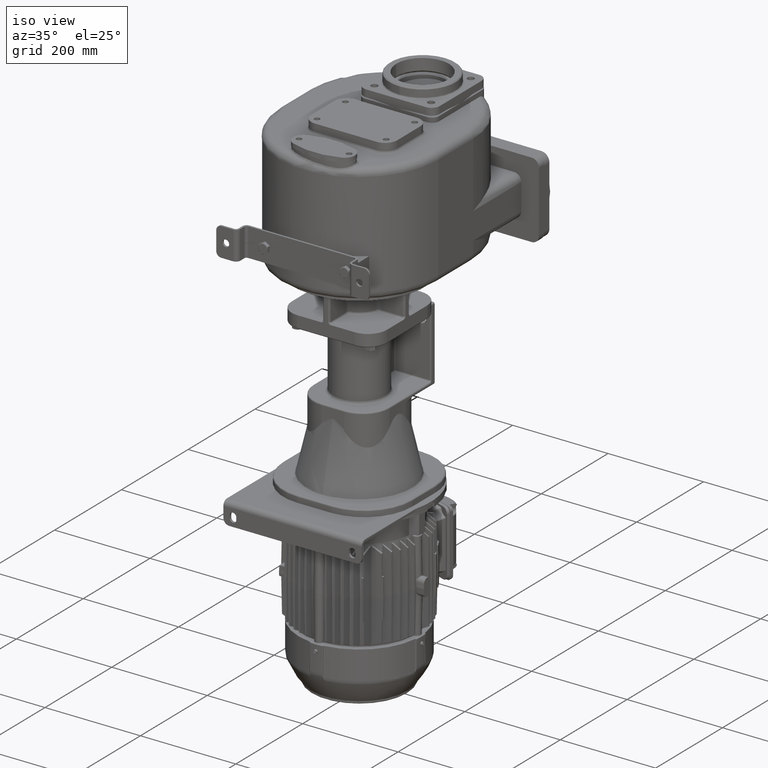
[diagram: clean part render]
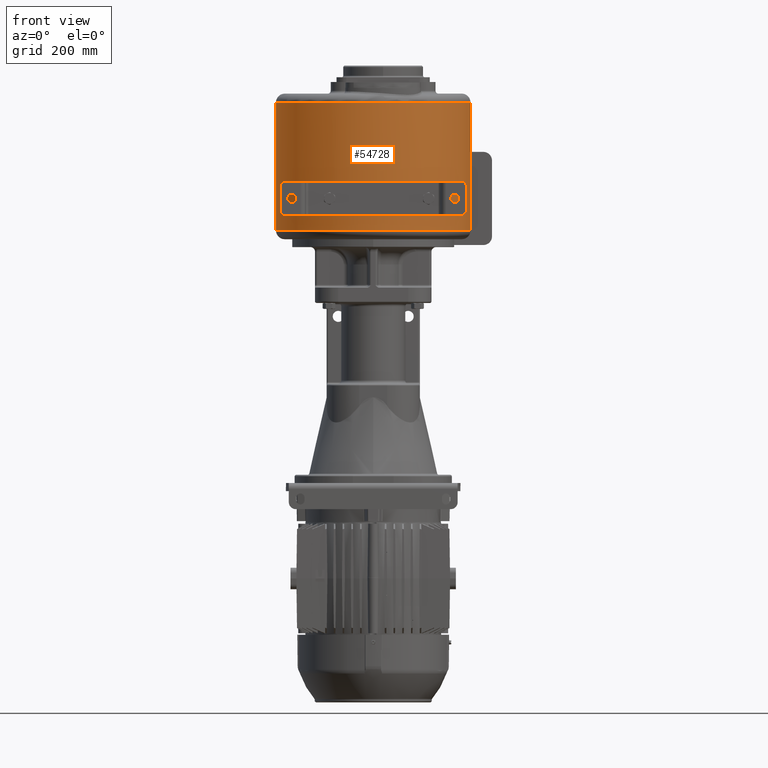
[diagram: tour spotlight — one face highlighted and labeled with its STEP entity id]
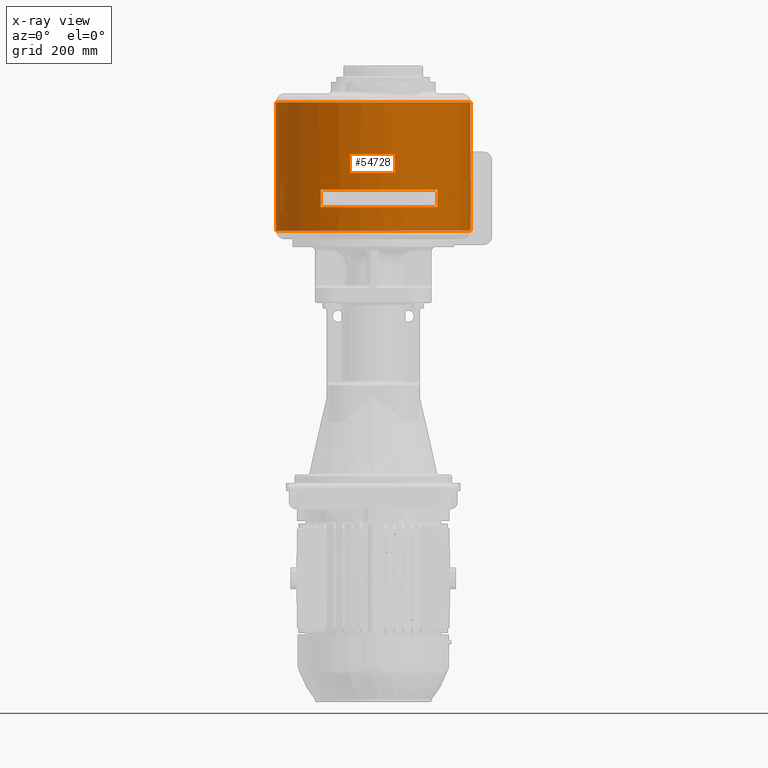
[diagram: x-ray of the same camera — body ghosted, this tour face saturated]
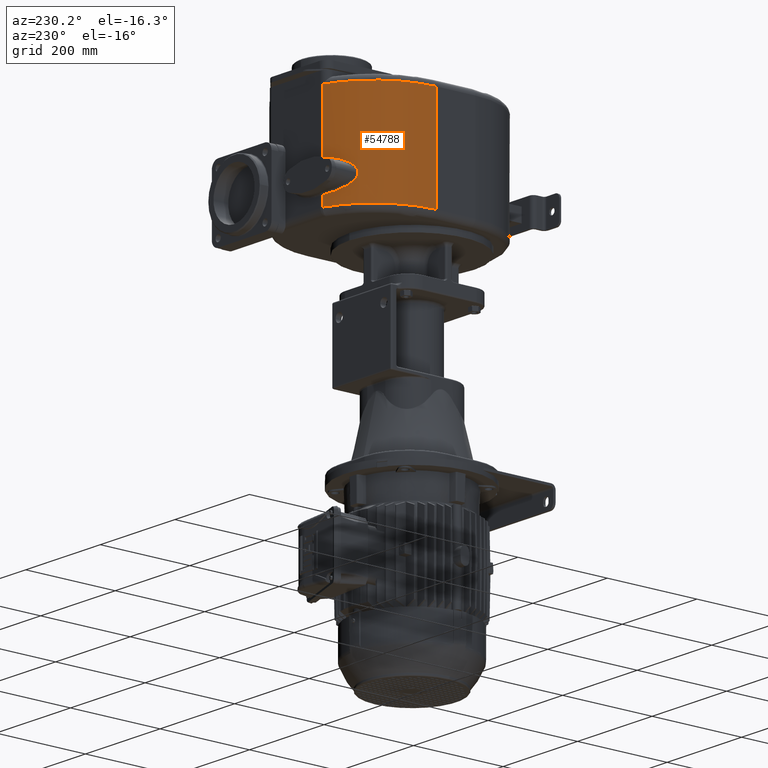
[diagram: tour spotlight — one face highlighted and labeled with its STEP entity id]
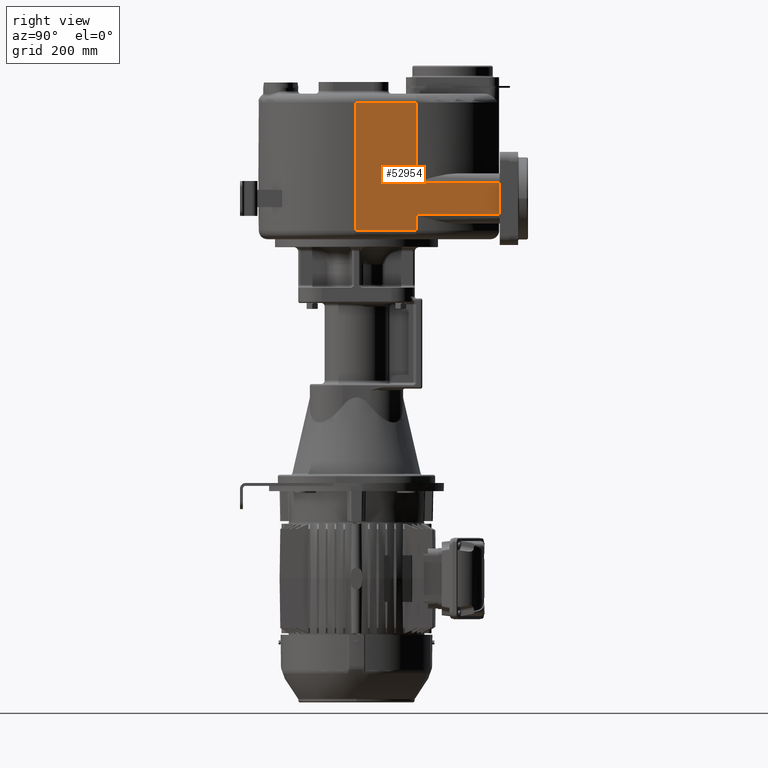
[diagram: tour spotlight — one face highlighted and labeled with its STEP entity id]
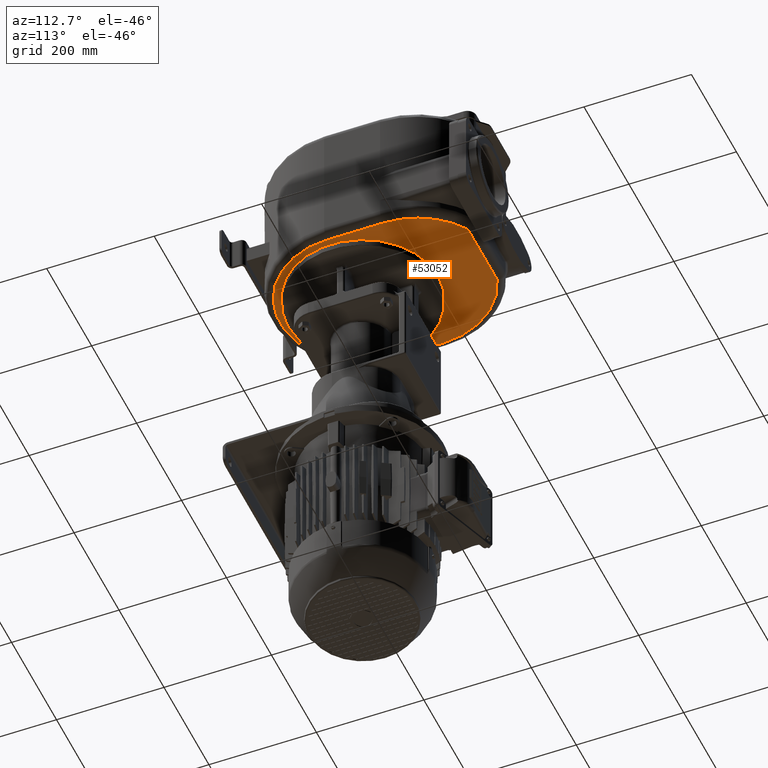
[diagram: tour spotlight — one face highlighted and labeled with its STEP entity id]
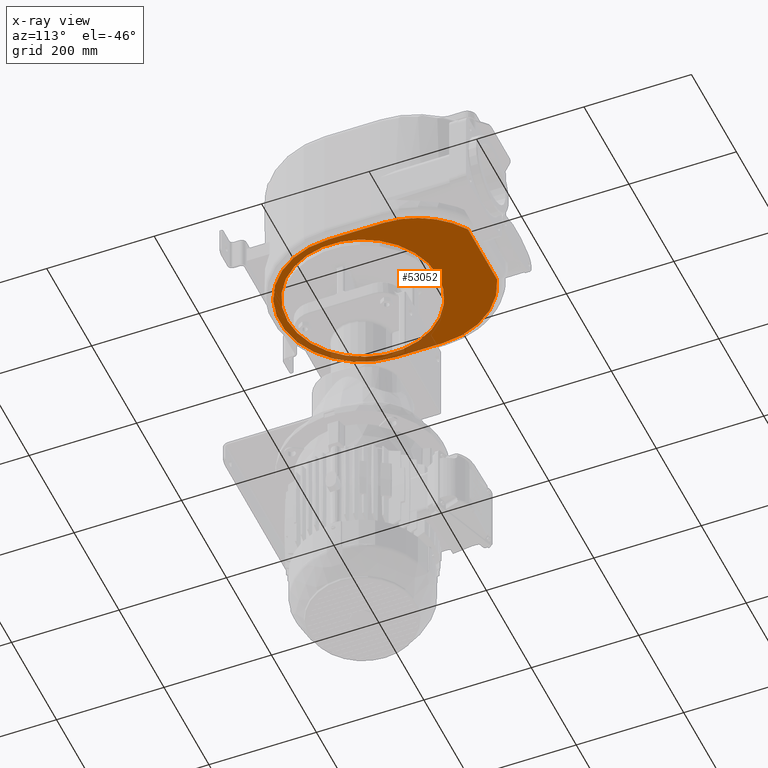
[diagram: x-ray of the same camera — body ghosted, this tour face saturated]
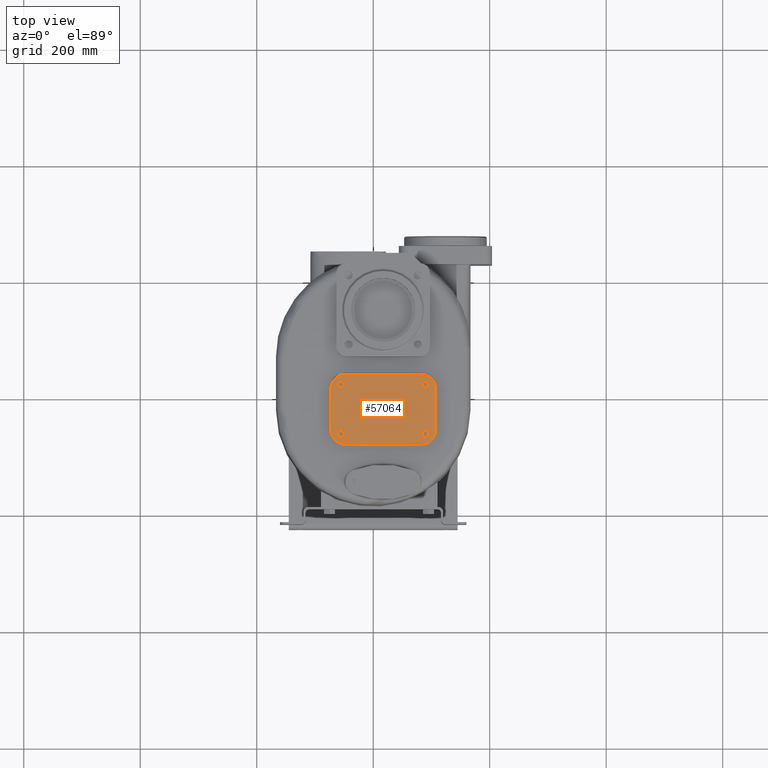
[diagram: tour spotlight — one face highlighted and labeled with its STEP entity id]
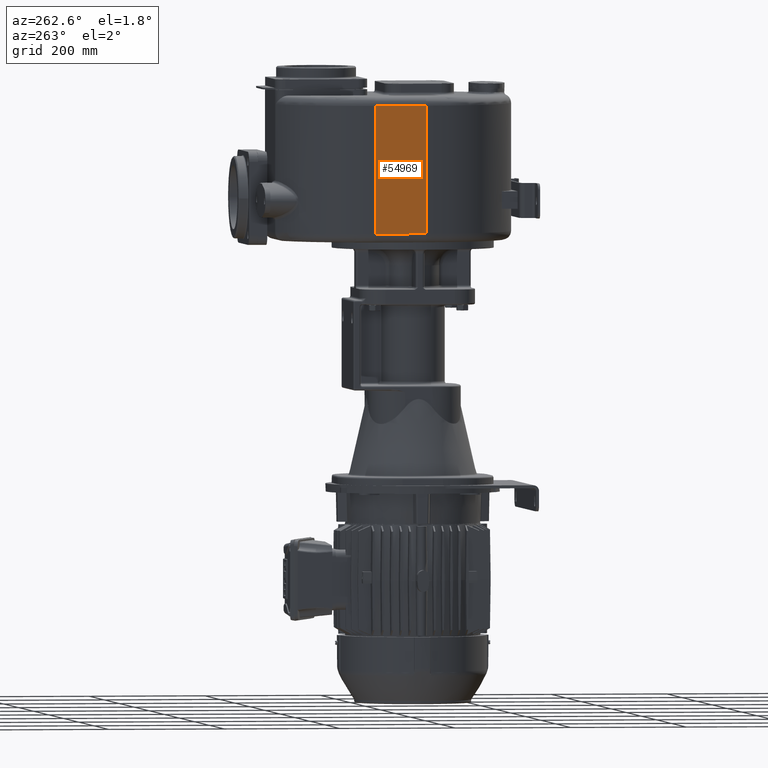
[diagram: tour spotlight — one face highlighted and labeled with its STEP entity id]
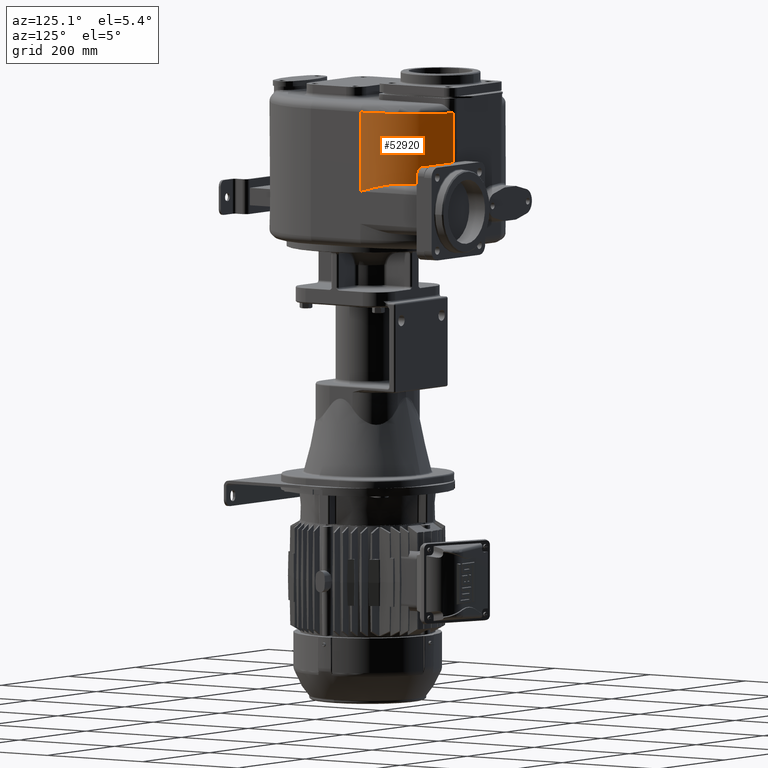
[diagram: tour spotlight — one face highlighted and labeled with its STEP entity id]
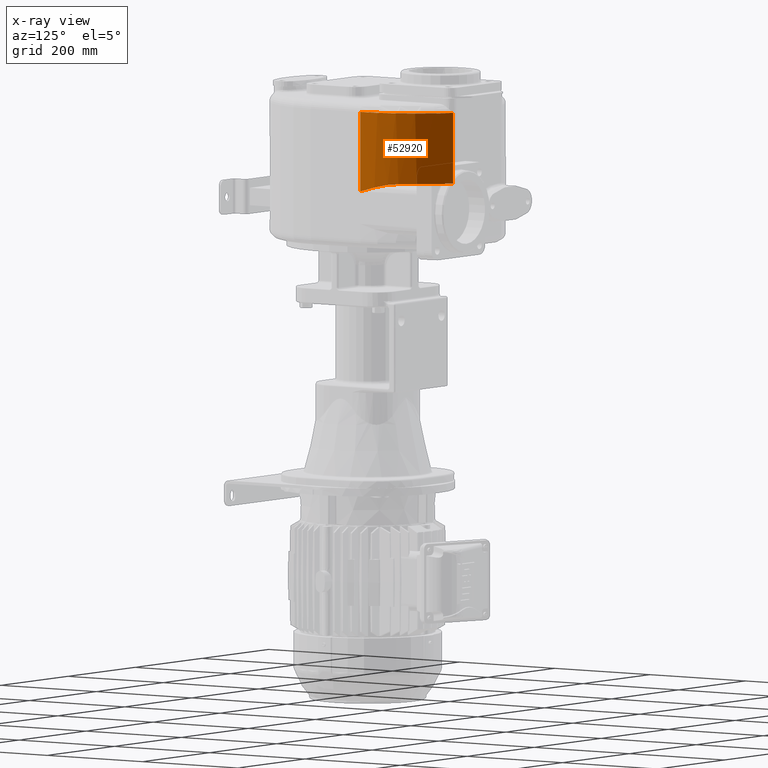
[diagram: x-ray of the same camera — body ghosted, this tour face saturated]
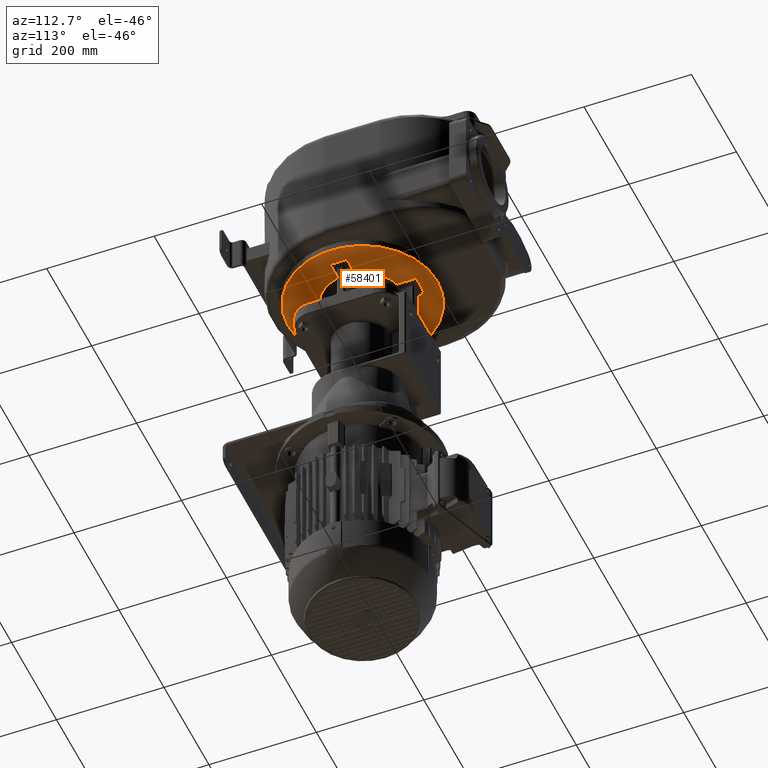
[diagram: tour spotlight — one face highlighted and labeled with its STEP entity id]
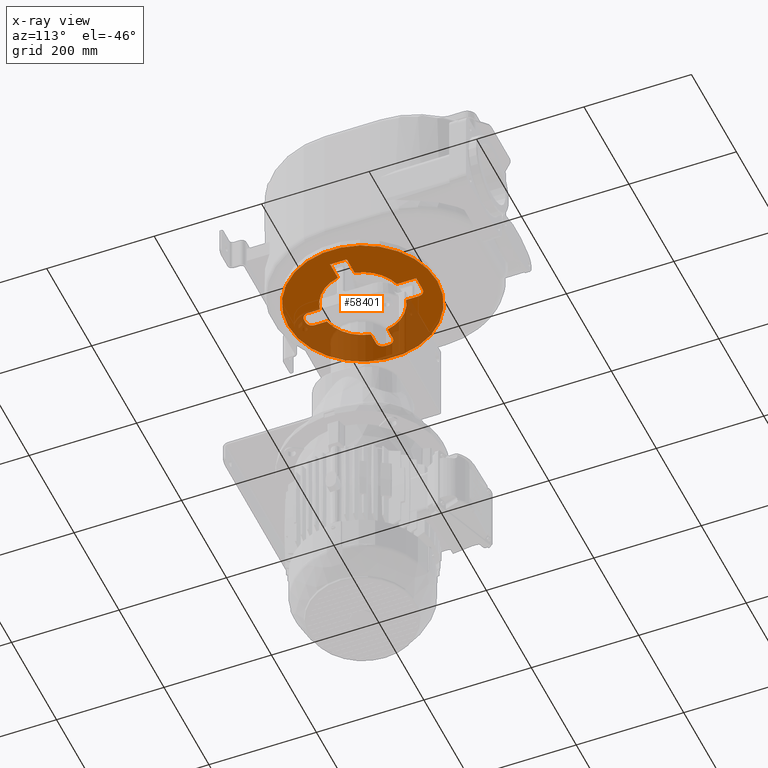
[diagram: x-ray of the same camera — body ghosted, this tour face saturated]
A machine part: a face-by-face anatomy tour. The part has 2948 B-rep faces; the first image is the clean iso view, then the 8 largest visible faces are spotlighted one at a time (largest first), each with its STEP entity span.

Face 1 — front view, entity #54728. An x-ray twin of the same camera follows (body ghosted, this face saturated) — the face is partly hidden behind the body. In plain terms, the highlighted cylindrical surface (partial cylindrical patch) has radius 167 mm, axis along (0, 0, -1).
Definition (entity closure, byte-faithful):
#2238=CARTESIAN_POINT('',(0.E0,1.68E2,-5.5E1));
#2239=DIRECTION('',(0.E0,0.E0,-1.E0));
#2240=DIRECTION('',(1.E0,0.E0,0.E0));
#2241=AXIS2_PLACEMENT_3D('',#2238,#2239,#2240);
#2243=CARTESIAN_POINT('',(0.E0,1.68E2,1.65E2));
#2244=DIRECTION('',(0.E0,0.E0,1.E0));
#2245=DIRECTION('',(-1.E0,0.E0,0.E0));
#2246=AXIS2_PLACEMENT_3D('',#2243,#2244,#2245);
#2248=DIRECTION('',(0.E0,-5.736017721409E-14,1.E0));
#2249=VECTOR('',#2248,2.2E2);
#2250=CARTESIAN_POINT('',(1.67E2,1.68E2,-5.5E1));
#2251=LINE('',#2250,#2249);
#2252=DIRECTION('',(0.E0,0.E0,-1.E0));
#2253=VECTOR('',#2252,3.E1);
#2254=CARTESIAN_POINT('',(1.1E2,4.234571236922E1,1.5E1));
#2255=LINE('',#2254,#2253);
#2256=CARTESIAN_POINT('',(0.E0,1.68E2,1.5E1));
#2257=DIRECTION('',(0.E0,0.E0,-1.E0));
#2258=DIRECTION('',(6.586826347305E-1,-7.524208840167E-1,0.E0));
#2259=AXIS2_PLACEMENT_3D('',#2256,#2257,#2258);
#2261=DIRECTION('',(0.E0,0.E0,-1.E0));
#2262=VECTOR('',#2261,3.E1);
#2263=CARTESIAN_POINT('',(-9.E1,2.732661943353E1,1.5E1));
#2264=LINE('',#2263,#2262);
#2265=CARTESIAN_POINT('',(0.E0,1.68E2,-1.5E1));
#2266=DIRECTION('',(0.E0,0.E0,-1.E0));
#2267=DIRECTION('',(6.586826347305E-1,-7.524208840167E-1,0.E0));
#2268=AXIS2_PLACEMENT_3D('',#2265,#2266,#2267);
#2523=DIRECTION('',(0.E0,1.061938415991E-13,1.E0));
#2524=VECTOR('',#2523,2.2E2);
#2525=CARTESIAN_POINT('',(-1.67E2,1.68E2,-5.5E1));
#2526=LINE('',#2525,#2524);
#43784=CARTESIAN_POINT('',(1.1E2,4.234571236922E1,1.5E1));
#43785=CARTESIAN_POINT('',(1.1E2,4.234571236922E1,-1.5E1));
#43786=VERTEX_POINT('',#43784);
#43787=VERTEX_POINT('',#43785);
#43788=CARTESIAN_POINT('',(-9.E1,2.732661943353E1,1.5E1));
#43789=VERTEX_POINT('',#43788);
#43790=CARTESIAN_POINT('',(-9.E1,2.732661943353E1,-1.5E1));
#43791=VERTEX_POINT('',#43790);
#43802=CARTESIAN_POINT('',(1.67E2,1.68E2,1.65E2));
#43803=VERTEX_POINT('',#43802);
#43804=CARTESIAN_POINT('',(-1.67E2,1.68E2,1.65E2));
#43805=VERTEX_POINT('',#43804);
#43838=CARTESIAN_POINT('',(1.67E2,1.68E2,-5.5E1));
#43839=VERTEX_POINT('',#43838);
#43842=CARTESIAN_POINT('',(-1.67E2,1.68E2,-5.5E1));
#43843=VERTEX_POINT('',#43842);
#54705=CARTESIAN_POINT('',(0.E0,1.68E2,-7.E1));
#54706=DIRECTION('',(0.E0,0.E0,-1.E0));
#54707=DIRECTION('',(-1.E0,0.E0,0.E0));
#54708=AXIS2_PLACEMENT_3D('',#54705,#54706,#54707);
#54709=CYLINDRICAL_SURFACE('',#54708,1.67E2);
#54711=ORIENTED_EDGE('',*,*,#54710,.T.);
#54713=ORIENTED_EDGE('',*,*,#54712,.T.);
#54714=ORIENTED_EDGE('',*,*,#54669,.T.);
#54715=ORIENTED_EDGE('',*,*,#52947,.F.);
#54716=EDGE_LOOP('',(#54711,#54713,#54714,#54715));
#54717=FACE_OUTER_BOUND('',#54716,.F.);
#54719=ORIENTED_EDGE('',*,*,#54718,.F.);
#54721=ORIENTED_EDGE('',*,*,#54720,.T.);
#54723=ORIENTED_EDGE('',*,*,#54722,.T.);
#54725=ORIENTED_EDGE('',*,*,#54724,.F.);
#54726=EDGE_LOOP('',(#54719,#54721,#54723,#54725));
#54727=FACE_BOUND('',#54726,.F.);
#54728=ADVANCED_FACE('',(#54717,#54727),#54709,.T.);
#2242=CIRCLE('',#2241,1.67E2);
#2247=CIRCLE('',#2246,1.67E2);
#2260=CIRCLE('',#2259,1.67E2);
#2269=CIRCLE('',#2268,1.67E2);
#52947=EDGE_CURVE('',#43839,#43803,#2251,.T.);
#54669=EDGE_CURVE('',#43805,#43803,#2247,.T.);
#54710=EDGE_CURVE('',#43839,#43843,#2242,.T.);
#54712=EDGE_CURVE('',#43843,#43805,#2526,.T.);
#54718=EDGE_CURVE('',#43786,#43787,#2255,.T.);
#54720=EDGE_CURVE('',#43786,#43789,#2260,.T.);
#54722=EDGE_CURVE('',#43789,#43791,#2264,.T.);
#54724=EDGE_CURVE('',#43787,#43791,#2269,.T.);

Face 2 — auxiliary view, entity #54788. In plain terms, the highlighted cylindrical surface (partial cylindrical patch) has radius 167 mm, axis along (0, 0, -1).
Definition (entity closure, byte-faithful):
#804=DIRECTION('',(-1.702311003760E-7,5.113602817437E-7,-9.999999999999E-1));
#805=VECTOR('',#804,2.142052452026E1);
#806=CARTESIAN_POINT('',(-5.273683845957E1,4.142324282914E2,-3.357947547974E1));
#807=LINE('',#806,#805);
#1464=DIRECTION('',(2.732706210189E-8,-8.211571407602E-8,-1.E0));
#1465=VECTOR('',#1464,1.314205245203E2);
#1466=CARTESIAN_POINT('',(-5.273684210526E1,4.142324392453E2,1.65E2));
#1467=LINE('',#1466,#1465);
#2285=CARTESIAN_POINT('',(-5.273683845957E1,4.142324282914E2,
-3.357947547974E1));
#2286=CARTESIAN_POINT('',(-5.346360415107E1,4.139905383948E2,
-3.352220150839E1));
#2287=CARTESIAN_POINT('',(-5.491331018192E1,4.134969722512E2,
-3.339604968487E1));
#2288=CARTESIAN_POINT('',(-5.707708335738E1,4.127268637559E2,
-3.317168938337E1));
#2289=CARTESIAN_POINT('',(-5.922622187061E1,4.119285253052E2,
-3.291242327512E1));
#2290=CARTESIAN_POINT('',(-6.135817060488E1,4.111031262438E2,
-3.261846807846E1));
#2291=CARTESIAN_POINT('',(-6.347011958443E1,4.102521014952E2,
-3.229025079527E1));
#2292=CARTESIAN_POINT('',(-6.555945354591E1,4.093769669664E2,
-3.192804036622E1));
#2293=CARTESIAN_POINT('',(-6.762377610672E1,4.084792985290E2,
-3.153201990898E1));
#2294=CARTESIAN_POINT('',(-6.966043160020E1,4.075609302504E2,
-3.110260881787E1));
#2295=CARTESIAN_POINT('',(-7.166560395170E1,4.066244151308E2,
-3.064071522872E1));
#2296=CARTESIAN_POINT('',(-7.363575810962E1,4.056724144599E2,
-3.014734375169E1));
#2297=CARTESIAN_POINT('',(-7.556720744328E1,4.047078913842E2,
-2.962331722294E1));
#2298=CARTESIAN_POINT('',(-7.745649723702E1,4.037339274169E2,
-2.906979438481E1));
#2299=CARTESIAN_POINT('',(-7.930044166901E1,4.027536815892E2,
-2.848822929022E1));
#2300=CARTESIAN_POINT('',(-8.109584381686E1,4.017705179603E2,
-2.788028981675E1));
#2301=CARTESIAN_POINT('',(-8.283851454164E1,4.007885723603E2,
-2.724769329912E1));
#2302=CARTESIAN_POINT('',(-8.452473471342E1,3.998119702271E2,
-2.659262702222E1));
#2303=CARTESIAN_POINT('',(-8.615101978179E1,3.988449181159E2,
-2.591784919128E1));
#2304=CARTESIAN_POINT('',(-8.771444590705E1,3.978914779311E2,
-2.522607798773E1));
#2305=CARTESIAN_POINT('',(-8.921265660878E1,3.969555066035E2,
-2.451950126605E1));
#2306=CARTESIAN_POINT('',(-9.064362466928E1,3.960407557474E2,
-2.380093665409E1));
#2307=CARTESIAN_POINT('',(-9.200556067996E1,3.951509003099E2,
-2.307389747945E1));
#2308=CARTESIAN_POINT('',(-9.329769704812E1,3.942889786290E2,
-2.234121280284E1));
#2309=CARTESIAN_POINT('',(-9.451980201946E1,3.934576426412E2,
-2.160510700277E1));
#2310=CARTESIAN_POINT('',(-9.567202932531E1,3.926592183026E2,
-2.086841403805E1));
#2311=CARTESIAN_POINT('',(-9.675459910812E1,3.918959084170E2,
-2.013472252303E1));
#2312=CARTESIAN_POINT('',(-9.777003615452E1,3.911681627701E2,
-1.940569929730E1));
#2313=CARTESIAN_POINT('',(-9.872168732703E1,3.904756192739E2,
-1.868146763666E1));
#2314=CARTESIAN_POINT('',(-9.961127285869E1,3.898188967693E2,
-1.796402755407E1));
#2315=CARTESIAN_POINT('',(-1.004397643002E2,3.891990371989E2,
-1.725650918461E1));
#2316=CARTESIAN_POINT('',(-1.012101885581E2,3.886153995074E2,
-1.656075041143E1));
#2317=CARTESIAN_POINT('',(-1.019268196375E2,3.880661834887E2,
-1.587557857140E1));
#2318=CARTESIAN_POINT('',(-1.025933043035E2,3.875498525817E2,
-1.520053302898E1));
#2319=CARTESIAN_POINT('',(-1.032119789800E2,3.870657190459E2,
-1.453667679186E1));
#2320=CARTESIAN_POINT('',(-1.037854450254E2,3.866127559731E2,
-1.388505507635E1));
#2321=CARTESIAN_POINT('',(-1.043167951162E2,3.861894092023E2,
-1.324625169501E1));
#2322=CARTESIAN_POINT('',(-1.048085244340E2,3.857944710789E2,
-1.261960531472E1));
#2323=CARTESIAN_POINT('',(-1.052631880942E2,3.854265770905E2,
-1.200454430014E1));
#2324=CARTESIAN_POINT('',(-1.056834356084E2,3.850841826807E2,
-1.140045182531E1));
#2325=CARTESIAN_POINT('',(-1.060719741705E2,3.847656005296E2,
-1.080655455983E1));
#2326=CARTESIAN_POINT('',(-1.064314910272E2,3.844690701783E2,
-1.022189649682E1));
#2327=CARTESIAN_POINT('',(-1.067633282162E2,3.841938700864E2,
-9.647499010330E0));
#2328=CARTESIAN_POINT('',(-1.070682434462E2,3.839397191410E2,
-9.084043961613E0));
#2329=CARTESIAN_POINT('',(-1.073471650803E2,3.837061573447E2,
-8.532389803167E0));
#2330=CARTESIAN_POINT('',(-1.076023713709E2,3.834915488405E2,
-7.990751570326E0));
#2331=CARTESIAN_POINT('',(-1.078360398864E2,3.832942893982E2,
-7.457018241453E0));
#2332=CARTESIAN_POINT('',(-1.080503368995E2,3.831127391525E2,
-6.928406868868E0));
#2333=CARTESIAN_POINT('',(-1.082464538349E2,3.829460477018E2,
-6.403823367121E0));
#2334=CARTESIAN_POINT('',(-1.084246697025E2,3.827941192481E2,
-5.884633727804E0));
#2335=CARTESIAN_POINT('',(-1.085854026859E2,3.826567244160E2,
-5.372001587504E0));
#2336=CARTESIAN_POINT('',(-1.087290991630E2,3.825335942081E2,
-4.867095190130E0));
#2337=CARTESIAN_POINT('',(-1.088567749167E2,3.824239551345E2,
-4.368913420585E0));
#2338=CARTESIAN_POINT('',(-1.089692841002E2,3.823271549316E2,
-3.876268431167E0));
#2339=CARTESIAN_POINT('',(-1.090673266391E2,3.822426596506E2,
-3.387767911140E0));
#2340=CARTESIAN_POINT('',(-1.091514181171E2,3.821700824956E2,
-2.902040503967E0));
#2341=CARTESIAN_POINT('',(-1.092217378935E2,3.821093154080E2,
-2.418151956321E0));
#2342=CARTESIAN_POINT('',(-1.092788298819E2,3.820599328370E2,
-1.935371573129E0));
#2343=CARTESIAN_POINT('',(-1.093231846292E2,3.820215222719E2,
-1.453043504760E0));
#2344=CARTESIAN_POINT('',(-1.093552437401E2,3.819937949612E2,
-9.703398623517E-1));
#2345=CARTESIAN_POINT('',(-1.093743750112E2,3.819770517988E2,
-4.865018622124E-1));
#2346=CARTESIAN_POINT('',(-1.093800961253E2,3.819725007013E2,
-1.623841455033E-1));
#2347=CARTESIAN_POINT('',(-1.093802224274E2,3.819723257762E2,
-3.065710558333E-8));
#2349=CARTESIAN_POINT('',(-1.093802224274E2,3.819723257762E2,
-3.065710558333E-8));
#2350=CARTESIAN_POINT('',(-1.093801067882E2,3.819724842046E2,
1.631990849167E-1));
#2351=CARTESIAN_POINT('',(-1.093746981318E2,3.819767751248E2,
4.887783681670E-1));
#2352=CARTESIAN_POINT('',(-1.093551222120E2,3.819938994053E2,
9.742907195982E-1));
#2353=CARTESIAN_POINT('',(-1.093227262586E2,3.820219195080E2,1.458166569495E0));
#2354=CARTESIAN_POINT('',(-1.092780000200E2,3.820606509770E2,1.941190085693E0));
#2355=CARTESIAN_POINT('',(-1.092206528443E2,3.821102535520E2,2.424215377775E0));
#2356=CARTESIAN_POINT('',(-1.091503359879E2,3.821710169703E2,2.907990816087E0));
#2357=CARTESIAN_POINT('',(-1.090663823637E2,3.822434739503E2,3.393145107500E0));
#2358=CARTESIAN_POINT('',(-1.089685286465E2,3.823278053310E2,3.880558464333E0));
#2359=CARTESIAN_POINT('',(-1.088562496229E2,3.824244065170E2,4.371940665531E0));
#2360=CARTESIAN_POINT('',(-1.087287657094E2,3.825338801467E2,4.869007736296E0));
#2361=CARTESIAN_POINT('',(-1.085851261970E2,3.826569610791E2,5.373278280845E0));
#2362=CARTESIAN_POINT('',(-1.084242107916E2,3.827945112006E2,5.886003527985E0));
#2363=CARTESIAN_POINT('',(-1.082456392134E2,3.829467414661E2,6.405742534634E0));
#2364=CARTESIAN_POINT('',(-1.080490857061E2,3.831138012188E2,6.931149536744E0));
#2365=CARTESIAN_POINT('',(-1.078344349497E2,3.832956469480E2,7.460468748555E0));
#2366=CARTESIAN_POINT('',(-1.076004485510E2,3.834931691646E2,7.994833040423E0));
#2367=CARTESIAN_POINT('',(-1.073449723131E2,3.837079976071E2,8.536947213548E0));
#2368=CARTESIAN_POINT('',(-1.070658258335E2,3.839417390273E2,9.088879859232E0));
#2369=CARTESIAN_POINT('',(-1.067607757394E2,3.841959923247E2,9.652311183663E0));
#2370=CARTESIAN_POINT('',(-1.064287363787E2,3.844713487273E2,1.022660186419E1));
#2371=CARTESIAN_POINT('',(-1.060688310395E2,3.847681859655E2,1.081131156907E1));
#2372=CARTESIAN_POINT('',(-1.056797319264E2,3.850872107089E2,1.140574786402E1));
#2373=CARTESIAN_POINT('',(-1.052588655835E2,3.854300875351E2,1.201047938533E1));
#2374=CARTESIAN_POINT('',(-1.048037706682E2,3.857983034203E2,1.262589002819E1));
#2375=CARTESIAN_POINT('',(-1.043120281316E2,3.861932219977E2,1.325229349319E1));
#2376=CARTESIAN_POINT('',(-1.037806558638E2,3.866165552915E2,1.389070742789E1));
#2377=CARTESIAN_POINT('',(-1.032067205554E2,3.870698544843E2,1.454237076986E1));
#2378=CARTESIAN_POINT('',(-1.025871760608E2,3.875546260173E2,1.520684251963E1));
#2379=CARTESIAN_POINT('',(-1.019198845924E2,3.880715279928E2,1.588239657139E1));
#2380=CARTESIAN_POINT('',(-1.012030275757E2,3.886208552285E2,1.656747922266E1));
#2381=CARTESIAN_POINT('',(-1.004325018319E2,3.892045050156E2,1.726292457515E1));
#2382=CARTESIAN_POINT('',(-9.960334981651E1,3.898247872915E2,1.797053418339E1));
#2383=CARTESIAN_POINT('',(-9.871275926516E1,3.904821654666E2,1.868842592219E1));
#2384=CARTESIAN_POINT('',(-9.776042892238E1,3.911751011056E2,1.941281362631E1));
#2385=CARTESIAN_POINT('',(-9.674481544872E1,3.919028628239E2,2.014159616161E1));
#2386=CARTESIAN_POINT('',(-9.566180235910E1,3.926663683585E2,2.087511134581E1));
#2387=CARTESIAN_POINT('',(-9.450866958249E1,3.934652888026E2,2.161199000627E1));
#2388=CARTESIAN_POINT('',(-9.328542877465E1,3.942972463900E2,2.234839355354E1));
#2389=CARTESIAN_POINT('',(-9.199208451637E1,3.951598005386E2,2.308134927629E1));
#2390=CARTESIAN_POINT('',(-9.062907174105E1,3.960501632692E2,2.380845092825E1));
#2391=CARTESIAN_POINT('',(-8.919736414149E1,3.969651714136E2,2.452692389164E1));
#2392=CARTESIAN_POINT('',(-8.769868618268E1,3.979012050103E2,2.523327891906E1));
#2393=CARTESIAN_POINT('',(-8.613503798651E1,3.988545407753E2,2.592470895173E1));
#2394=CARTESIAN_POINT('',(-8.450872924973E1,3.998213606527E2,2.659903135360E1));
#2395=CARTESIAN_POINT('',(-8.282271766187E1,4.007975930520E2,2.725360943848E1));
#2396=CARTESIAN_POINT('',(-8.108048960306E1,4.017790423553E2,2.788566987477E1));
#2397=CARTESIAN_POINT('',(-7.928576786737E1,4.027615930299E2,2.849302318218E1));
#2398=CARTESIAN_POINT('',(-7.744275312677E1,4.037411157527E2,2.907395275734E1));
#2399=CARTESIAN_POINT('',(-7.555457351980E1,4.047142944625E2,2.962686452526E1));
#2400=CARTESIAN_POINT('',(-7.362431797944E1,4.056780269838E2,3.015031896833E1));
#2401=CARTESIAN_POINT('',(-7.165534836411E1,4.066292805946E2,3.064317434979E1));
#2402=CARTESIAN_POINT('',(-6.965124351602E1,4.075651409625E2,3.110462088815E1));
#2403=CARTESIAN_POINT('',(-6.761560171948E1,4.084829125779E2,3.153365349192E1));
#2404=CARTESIAN_POINT('',(-6.555231898788E1,4.093800060868E2,3.192933493761E1));
#2405=CARTESIAN_POINT('',(-6.346407172185E1,4.102545801959E2,3.229124017327E1));
#2406=CARTESIAN_POINT('',(-6.135327235515E1,4.111050547679E2,3.261917780029E1));
#2407=CARTESIAN_POINT('',(-5.922252556755E1,4.119299207360E2,3.291289124498E1));
#2408=CARTESIAN_POINT('',(-5.707461823266E1,4.127277537647E2,3.317195684329E1));
#2409=CARTESIAN_POINT('',(-5.491208743051E1,4.134973914159E2,3.339615912403E1));
#2410=CARTESIAN_POINT('',(-5.346319779502E1,4.139906740183E2,3.352223359441E1));
#2411=CARTESIAN_POINT('',(-5.273683851393E1,4.142324284536E2,3.357947547971E1));
#2413=CARTESIAN_POINT('',(0.E0,2.557779489814E2,1.65E2));
#2414=DIRECTION('',(0.E0,0.E0,1.E0));
#2415=DIRECTION('',(-3.157894736842E-1,9.488292830168E-1,0.E0));
#2416=AXIS2_PLACEMENT_3D('',#2413,#2414,#2415);
#2418=DIRECTION('',(0.E0,2.790495107712E-14,1.E0));
#2419=VECTOR('',#2418,2.2E2);
#2420=CARTESIAN_POINT('',(-1.67E2,2.557779489814E2,-5.5E1));
#2421=LINE('',#2420,#2419);
#2422=CARTESIAN_POINT('',(0.E0,2.557779489814E2,-5.5E1));
#2423=DIRECTION('',(0.E0,0.E0,-1.E0));
#2424=DIRECTION('',(-1.E0,0.E0,0.E0));
#2425=AXIS2_PLACEMENT_3D('',#2422,#2423,#2424);
#43810=CARTESIAN_POINT('',(-1.67E2,2.557779489814E2,1.65E2));
#43811=VERTEX_POINT('',#43810);
#43814=CARTESIAN_POINT('',(-5.273684210526E1,4.142324392453E2,1.65E2));
#43815=VERTEX_POINT('',#43814);
#43846=CARTESIAN_POINT('',(-1.67E2,2.557779489814E2,-5.5E1));
#43847=VERTEX_POINT('',#43846);
#43848=CARTESIAN_POINT('',(-5.273684210526E1,4.142324392453E2,-5.5E1));
#43849=VERTEX_POINT('',#43848);
#43854=VERTEX_POINT('',#2285);
#43855=VERTEX_POINT('',#2347);
#43866=CARTESIAN_POINT('',(-5.273683851393E1,4.142324284536E2,
3.357947547971E1));
#43867=VERTEX_POINT('',#43866);
#54770=CARTESIAN_POINT('',(0.E0,2.557779489814E2,-7.E1));
#54771=DIRECTION('',(0.E0,0.E0,-1.E0));
#54772=DIRECTION('',(-1.E0,0.E0,0.E0));
#54773=AXIS2_PLACEMENT_3D('',#54770,#54771,#54772);
#54774=CYLINDRICAL_SURFACE('',#54773,1.67E2);
#54776=ORIENTED_EDGE('',*,*,#54775,.T.);
#54778=ORIENTED_EDGE('',*,*,#54777,.T.);
#54779=ORIENTED_EDGE('',*,*,#53892,.F.);
#54781=ORIENTED_EDGE('',*,*,#54780,.T.);
#54783=ORIENTED_EDGE('',*,*,#54782,.F.);
#54784=ORIENTED_EDGE('',*,*,#54762,.T.);
#54785=ORIENTED_EDGE('',*,*,#53086,.F.);
#54786=EDGE_LOOP('',(#54776,#54778,#54779,#54781,#54783,#54784,#54785));
#54787=FACE_OUTER_BOUND('',#54786,.F.);
#54788=ADVANCED_FACE('',(#54787),#54774,.T.);
#2348=B_SPLINE_CURVE_WITH_KNOTS('',3,(#2285,#2286,#2287,#2288,#2289,#2290,#2291,
#2292,#2293,#2294,#2295,#2296,#2297,#2298,#2299,#2300,#2301,#2302,#2303,#2304,
#2305,#2306,#2307,#2308,#2309,#2310,#2311,#2312,#2313,#2314,#2315,#2316,#2317,
#2318,#2319,#2320,#2321,#2322,#2323,#2324,#2325,#2326,#2327,#2328,#2329,#2330,
#2331,#2332,#2333,#2334,#2335,#2336,#2337,#2338,#2339,#2340,#2341,#2342,#2343,
#2344,#2345,#2346,#2347),.UNSPECIFIED.,.F.,.F.,(4,1,1,1,1,1,1,1,1,1,1,1,1,1,1,1,
1,1,1,1,1,1,1,1,1,1,1,1,1,1,1,1,1,1,1,1,1,1,1,1,1,1,1,1,1,1,1,1,1,1,1,1,1,1,1,1,
1,1,1,1,4),(0.E0,1.666666666667E-2,3.333333333333E-2,5.E-2,6.666666666667E-2,
8.333333333333E-2,1.E-1,1.166666666667E-1,1.333333333333E-1,1.5E-1,
1.666666666667E-1,1.833333333333E-1,2.E-1,2.166666666667E-1,2.333333333333E-1,
2.5E-1,2.666666666667E-1,2.833333333333E-1,3.E-1,3.166666666667E-1,
3.333333333333E-1,3.5E-1,3.666666666667E-1,3.833333333333E-1,4.E-1,
4.166666666667E-1,4.333333333333E-1,4.5E-1,4.666666666667E-1,4.833333333333E-1,
5.E-1,5.166666666667E-1,5.333333333333E-1,5.5E-1,5.666666666667E-1,
5.833333333333E-1,6.E-1,6.166666666667E-1,6.333333333333E-1,6.5E-1,
6.666666666667E-1,6.833333333333E-1,7.E-1,7.166666666667E-1,7.333333333333E-1,
7.5E-1,7.666666666667E-1,7.833333333333E-1,8.E-1,8.166666666667E-1,
8.333333333333E-1,8.5E-1,8.666666666667E-1,8.833333333333E-1,9.E-1,
9.166666666667E-1,9.333333333333E-1,9.5E-1,9.666666666667E-1,9.833333333333E-1,
1.E0),.UNSPECIFIED.);
#2412=B_SPLINE_CURVE_WITH_KNOTS('',3,(#2349,#2350,#2351,#2352,#2353,#2354,#2355,
#2356,#2357,#2358,#2359,#2360,#2361,#2362,#2363,#2364,#2365,#2366,#2367,#2368,
#2369,#2370,#2371,#2372,#2373,#2374,#2375,#2376,#2377,#2378,#2379,#2380,#2381,
#2382,#2383,#2384,#2385,#2386,#2387,#2388,#2389,#2390,#2391,#2392,#2393,#2394,
#2395,#2396,#2397,#2398,#2399,#2400,#2401,#2402,#2403,#2404,#2405,#2406,#2407,
#2408,#2409,#2410,#2411),.UNSPECIFIED.,.F.,.F.,(4,1,1,1,1,1,1,1,1,1,1,1,1,1,1,1,
1,1,1,1,1,1,1,1,1,1,1,1,1,1,1,1,1,1,1,1,1,1,1,1,1,1,1,1,1,1,1,1,1,1,1,1,1,1,1,1,
1,1,1,1,4),(0.E0,1.666666666667E-2,3.333333333333E-2,5.E-2,6.666666666667E-2,
8.333333333333E-2,1.E-1,1.166666666667E-1,1.333333333333E-1,1.5E-1,
1.666666666667E-1,1.833333333333E-1,2.E-1,2.166666666667E-1,2.333333333333E-1,
2.5E-1,2.666666666667E-1,2.833333333333E-1,3.E-1,3.166666666667E-1,
3.333333333333E-1,3.5E-1,3.666666666667E-1,3.833333333333E-1,4.E-1,
4.166666666667E-1,4.333333333333E-1,4.5E-1,4.666666666667E-1,4.833333333333E-1,
5.E-1,5.166666666667E-1,5.333333333333E-1,5.5E-1,5.666666666667E-1,
5.833333333333E-1,6.E-1,6.166666666667E-1,6.333333333333E-1,6.5E-1,
6.666666666667E-1,6.833333333333E-1,7.E-1,7.166666666667E-1,7.333333333333E-1,
7.5E-1,7.666666666667E-1,7.833333333333E-1,8.E-1,8.166666666667E-1,
8.333333333333E-1,8.5E-1,8.666666666667E-1,8.833333333333E-1,9.E-1,
9.166666666667E-1,9.333333333333E-1,9.5E-1,9.666666666667E-1,9.833333333333E-1,
1.E0),.UNSPECIFIED.);
#2417=CIRCLE('',#2416,1.67E2);
#2426=CIRCLE('',#2425,1.67E2);
#53086=EDGE_CURVE('',#43854,#43849,#807,.T.);
#53892=EDGE_CURVE('',#43815,#43867,#1467,.T.);
#54762=EDGE_CURVE('',#43847,#43849,#2426,.T.);
#54775=EDGE_CURVE('',#43854,#43855,#2348,.T.);
#54777=EDGE_CURVE('',#43855,#43867,#2412,.T.);
#54780=EDGE_CURVE('',#43815,#43811,#2417,.T.);
#54782=EDGE_CURVE('',#43847,#43811,#2421,.T.);

Face 3 — right view, entity #52954. In plain terms, the highlighted planar face has unit normal (1, 0, 0).
Definition (entity closure, byte-faithful):
#341=DIRECTION('',(0.E0,0.E0,1.E0));
#342=VECTOR('',#341,5.6E1);
#343=CARTESIAN_POINT('',(1.67E2,4.16E2,-2.8E1));
#344=LINE('',#343,#342);
#608=DIRECTION('',(0.E0,-4.086087510520E-12,1.E0));
#609=VECTOR('',#608,1.37E2);
#610=CARTESIAN_POINT('',(1.67E2,2.720156259538E2,2.8E1));
#611=LINE('',#610,#609);
#654=DIRECTION('',(0.E0,1.E0,0.E0));
#655=VECTOR('',#654,1.439843740462E2);
#656=CARTESIAN_POINT('',(1.67E2,2.720156259538E2,2.8E1));
#657=LINE('',#656,#655);
#658=DIRECTION('',(0.E0,1.E0,0.E0));
#659=VECTOR('',#658,1.439843740462E2);
#660=CARTESIAN_POINT('',(1.67E2,2.720156259538E2,-2.8E1));
#661=LINE('',#660,#659);
#662=DIRECTION('',(0.E0,-1.E0,0.E0));
#663=VECTOR('',#662,1.040156259535E2);
#664=CARTESIAN_POINT('',(1.67E2,2.720156259535E2,-5.5E1));
#665=LINE('',#664,#663);
#666=DIRECTION('',(0.E0,1.E0,0.E0));
#667=VECTOR('',#666,1.040156259532E2);
#668=CARTESIAN_POINT('',(1.67E2,1.68E2,1.65E2));
#669=LINE('',#668,#667);
#2248=DIRECTION('',(0.E0,-5.736017721409E-14,1.E0));
#2249=VECTOR('',#2248,2.2E2);
#2250=CARTESIAN_POINT('',(1.67E2,1.68E2,-5.5E1));
#2251=LINE('',#2250,#2249);
#43290=DIRECTION('',(0.E0,1.039602971610E-11,1.E0));
#43291=VECTOR('',#43290,2.7E1);
#43292=CARTESIAN_POINT('',(1.67E2,2.720156259535E2,-5.5E1));
#43293=LINE('',#43292,#43291);
#43720=CARTESIAN_POINT('',(1.67E2,2.720156259538E2,2.8E1));
#43721=CARTESIAN_POINT('',(1.67E2,4.16E2,2.8E1));
#43722=VERTEX_POINT('',#43720);
#43723=VERTEX_POINT('',#43721);
#43748=CARTESIAN_POINT('',(1.67E2,2.720156259538E2,-2.8E1));
#43749=CARTESIAN_POINT('',(1.67E2,4.16E2,-2.8E1));
#43750=VERTEX_POINT('',#43748);
#43751=VERTEX_POINT('',#43749);
#43792=CARTESIAN_POINT('',(1.67E2,2.720156259538E2,1.65E2));
#43794=VERTEX_POINT('',#43792);
#43802=CARTESIAN_POINT('',(1.67E2,1.68E2,1.65E2));
#43803=VERTEX_POINT('',#43802);
#43833=CARTESIAN_POINT('',(1.67E2,2.720156259538E2,-5.5E1));
#43835=VERTEX_POINT('',#43833);
#43838=CARTESIAN_POINT('',(1.67E2,1.68E2,-5.5E1));
#43839=VERTEX_POINT('',#43838);
#52934=CARTESIAN_POINT('',(1.67E2,1.7E2,-4.3E1));
#52935=DIRECTION('',(1.E0,0.E0,0.E0));
#52936=DIRECTION('',(0.E0,0.E0,1.E0));
#52937=AXIS2_PLACEMENT_3D('',#52934,#52935,#52936);
#52938=PLANE('',#52937);
#52939=ORIENTED_EDGE('',*,*,#52926,.T.);
#52940=ORIENTED_EDGE('',*,*,#52738,.F.);
#52942=ORIENTED_EDGE('',*,*,#52941,.F.);
#52944=ORIENTED_EDGE('',*,*,#52943,.F.);
#52946=ORIENTED_EDGE('',*,*,#52945,.T.);
#52948=ORIENTED_EDGE('',*,*,#52947,.T.);
#52950=ORIENTED_EDGE('',*,*,#52949,.T.);
#52951=ORIENTED_EDGE('',*,*,#52913,.F.);
#52952=EDGE_LOOP('',(#52939,#52940,#52942,#52944,#52946,#52948,#52950,#52951));
#52953=FACE_OUTER_BOUND('',#52952,.F.);
#52954=ADVANCED_FACE('',(#52953),#52938,.T.);
#52738=EDGE_CURVE('',#43751,#43723,#344,.T.);
#52913=EDGE_CURVE('',#43722,#43794,#611,.T.);
#52926=EDGE_CURVE('',#43722,#43723,#657,.T.);
#52941=EDGE_CURVE('',#43750,#43751,#661,.T.);
#52943=EDGE_CURVE('',#43835,#43750,#43293,.T.);
#52945=EDGE_CURVE('',#43835,#43839,#665,.T.);
#52947=EDGE_CURVE('',#43839,#43803,#2251,.T.);
#52949=EDGE_CURVE('',#43803,#43794,#669,.T.);

Face 4 — auxiliary view, entity #53052. An x-ray twin of the same camera follows (body ghosted, this face saturated) — the face is partly hidden behind the body. In plain terms, the highlighted planar face has unit normal (0, 0, 1).
Definition (entity closure, byte-faithful):
#743=DIRECTION('',(1.E0,0.E0,0.E0));
#744=VECTOR('',#743,1.3E2);
#745=CARTESIAN_POINT('',(-4.8E1,4.E2,-7.E1));
#746=LINE('',#745,#744);
#747=CARTESIAN_POINT('',(0.E0,2.557779489814E2,-7.E1));
#748=DIRECTION('',(0.E0,0.E0,-1.E0));
#749=DIRECTION('',(-1.E0,0.E0,0.E0));
#750=AXIS2_PLACEMENT_3D('',#747,#748,#749);
#752=DIRECTION('',(0.E0,1.E0,0.E0));
#753=VECTOR('',#752,8.777794898144E1);
#754=CARTESIAN_POINT('',(-1.52E2,1.68E2,-7.E1));
#755=LINE('',#754,#753);
#756=CARTESIAN_POINT('',(0.E0,1.68E2,-7.E1));
#757=DIRECTION('',(0.E0,0.E0,-1.E0));
#758=DIRECTION('',(1.E0,0.E0,0.E0));
#759=AXIS2_PLACEMENT_3D('',#756,#757,#758);
#761=DIRECTION('',(0.E0,-1.E0,0.E0));
#762=VECTOR('',#761,1.040156259538E2);
#763=CARTESIAN_POINT('',(1.52E2,2.720156259538E2,-7.E1));
#764=LINE('',#763,#762);
#765=CARTESIAN_POINT('',(0.E0,2.720156259538E2,-7.E1));
#766=DIRECTION('',(0.E0,0.E0,-1.E0));
#767=DIRECTION('',(5.394736842105E-1,8.420024608303E-1,0.E0));
#768=AXIS2_PLACEMENT_3D('',#765,#766,#767);
#770=CARTESIAN_POINT('',(0.E0,1.7E2,-7.E1));
#771=DIRECTION('',(0.E0,0.E0,-1.E0));
#772=DIRECTION('',(0.E0,-1.E0,0.E0));
#773=AXIS2_PLACEMENT_3D('',#770,#771,#772);
#775=CARTESIAN_POINT('',(0.E0,1.7E2,-7.E1));
#776=DIRECTION('',(0.E0,0.E0,-1.E0));
#777=DIRECTION('',(0.E0,1.E0,0.E0));
#778=AXIS2_PLACEMENT_3D('',#775,#776,#777);
#43826=CARTESIAN_POINT('',(-4.8E1,4.E2,-7.E1));
#43827=CARTESIAN_POINT('',(8.2E1,4.E2,-7.E1));
#43828=VERTEX_POINT('',#43826);
#43829=VERTEX_POINT('',#43827);
#43830=CARTESIAN_POINT('',(1.52E2,2.720156259538E2,-7.E1));
#43831=VERTEX_POINT('',#43830);
#43836=CARTESIAN_POINT('',(1.52E2,1.68E2,-7.E1));
#43837=VERTEX_POINT('',#43836);
#43840=CARTESIAN_POINT('',(-1.52E2,1.68E2,-7.E1));
#43841=VERTEX_POINT('',#43840);
#43844=CARTESIAN_POINT('',(-1.52E2,2.557779489814E2,-7.E1));
#43845=VERTEX_POINT('',#43844);
#44195=CARTESIAN_POINT('',(-7.931754456707E-14,3.E1,-7.E1));
#44196=CARTESIAN_POINT('',(0.E0,3.1E2,-7.E1));
#44197=VERTEX_POINT('',#44195);
#44198=VERTEX_POINT('',#44196);
#53028=CARTESIAN_POINT('',(0.E0,1.7E2,-7.E1));
#53029=DIRECTION('',(0.E0,0.E0,1.E0));
#53030=DIRECTION('',(-1.E0,0.E0,0.E0));
#53031=AXIS2_PLACEMENT_3D('',#53028,#53029,#53030);
#53032=PLANE('',#53031);
#53034=ORIENTED_EDGE('',*,*,#53033,.F.);
#53036=ORIENTED_EDGE('',*,*,#53035,.F.);
#53038=ORIENTED_EDGE('',*,*,#53037,.F.);
#53040=ORIENTED_EDGE('',*,*,#53039,.F.);
#53042=ORIENTED_EDGE('',*,*,#53041,.F.);
#53043=ORIENTED_EDGE('',*,*,#53018,.F.);
#53044=EDGE_LOOP('',(#53034,#53036,#53038,#53040,#53042,#53043));
#53045=FACE_OUTER_BOUND('',#53044,.F.);
#53047=ORIENTED_EDGE('',*,*,#53046,.T.);
#53049=ORIENTED_EDGE('',*,*,#53048,.T.);
#53050=EDGE_LOOP('',(#53047,#53049));
#53051=FACE_BOUND('',#53050,.F.);
#53052=ADVANCED_FACE('',(#53045,#53051),#53032,.F.);
#751=CIRCLE('',#750,1.52E2);
#760=CIRCLE('',#759,1.52E2);
#769=CIRCLE('',#768,1.52E2);
#774=CIRCLE('',#773,1.4E2);
#779=CIRCLE('',#778,1.4E2);
#53018=EDGE_CURVE('',#43829,#43831,#769,.T.);
#53033=EDGE_CURVE('',#43828,#43829,#746,.T.);
#53035=EDGE_CURVE('',#43845,#43828,#751,.T.);
#53037=EDGE_CURVE('',#43841,#43845,#755,.T.);
#53039=EDGE_CURVE('',#43837,#43841,#760,.T.);
#53041=EDGE_CURVE('',#43831,#43837,#764,.T.);
#53046=EDGE_CURVE('',#44197,#44198,#774,.T.);
#53048=EDGE_CURVE('',#44198,#44197,#779,.T.);

Face 5 — top view, entity #57064. In plain terms, the highlighted planar face has unit normal (0, 0, -1).
Definition (entity closure, byte-faithful):
#4398=CARTESIAN_POINT('',(-4.8E1,1.3E2,2.E2));
#4399=DIRECTION('',(0.E0,0.E0,-1.E0));
#4400=DIRECTION('',(0.E0,-1.E0,0.E0));
#4401=AXIS2_PLACEMENT_3D('',#4398,#4399,#4400);
#4403=DIRECTION('',(0.E0,1.E0,0.E0));
#4404=VECTOR('',#4403,7.E1);
#4405=CARTESIAN_POINT('',(-7.3E1,1.3E2,2.E2));
#4406=LINE('',#4405,#4404);
#4407=CARTESIAN_POINT('',(-4.8E1,2.E2,2.E2));
#4408=DIRECTION('',(0.E0,0.E0,-1.E0));
#4409=DIRECTION('',(-1.E0,0.E0,0.E0));
#4410=AXIS2_PLACEMENT_3D('',#4407,#4408,#4409);
#4412=DIRECTION('',(1.E0,0.E0,0.E0));
#4413=VECTOR('',#4412,1.3E2);
#4414=CARTESIAN_POINT('',(-4.8E1,2.25E2,2.E2));
#4415=LINE('',#4414,#4413);
#4416=CARTESIAN_POINT('',(8.2E1,2.E2,2.E2));
#4417=DIRECTION('',(0.E0,0.E0,-1.E0));
#4418=DIRECTION('',(0.E0,1.E0,0.E0));
#4419=AXIS2_PLACEMENT_3D('',#4416,#4417,#4418);
#4421=DIRECTION('',(0.E0,-1.E0,0.E0));
#4422=VECTOR('',#4421,7.E1);
#4423=CARTESIAN_POINT('',(1.07E2,2.E2,2.E2));
#4424=LINE('',#4423,#4422);
#4425=CARTESIAN_POINT('',(8.2E1,1.3E2,2.E2));
#4426=DIRECTION('',(0.E0,0.E0,-1.E0));
#4427=DIRECTION('',(1.E0,0.E0,0.E0));
#4428=AXIS2_PLACEMENT_3D('',#4425,#4426,#4427);
#4430=DIRECTION('',(-1.E0,0.E0,0.E0));
#4431=VECTOR('',#4430,1.3E2);
#4432=CARTESIAN_POINT('',(8.2E1,1.05E2,2.E2));
#4433=LINE('',#4432,#4431);
#4434=CARTESIAN_POINT('',(8.95E1,1.225E2,2.E2));
#4435=DIRECTION('',(0.E0,0.E0,1.E0));
#4436=DIRECTION('',(1.E0,0.E0,0.E0));
#4437=AXIS2_PLACEMENT_3D('',#4434,#4435,#4436);
#4439=CARTESIAN_POINT('',(8.95E1,1.225E2,2.E2));
#4440=DIRECTION('',(0.E0,0.E0,1.E0));
#4441=DIRECTION('',(-1.E0,0.E0,0.E0));
#4442=AXIS2_PLACEMENT_3D('',#4439,#4440,#4441);
#4444=CARTESIAN_POINT('',(8.95E1,2.075E2,2.E2));
#4445=DIRECTION('',(0.E0,0.E0,1.E0));
#4446=DIRECTION('',(1.E0,0.E0,0.E0));
#4447=AXIS2_PLACEMENT_3D('',#4444,#4445,#4446);
#4449=CARTESIAN_POINT('',(8.95E1,2.075E2,2.E2));
#4450=DIRECTION('',(0.E0,0.E0,1.E0));
#4451=DIRECTION('',(-1.E0,0.E0,0.E0));
#4452=AXIS2_PLACEMENT_3D('',#4449,#4450,#4451);
#4454=CARTESIAN_POINT('',(-5.55E1,1.225E2,2.E2));
#4455=DIRECTION('',(0.E0,0.E0,1.E0));
#4456=DIRECTION('',(1.E0,0.E0,0.E0));
#4457=AXIS2_PLACEMENT_3D('',#4454,#4455,#4456);
#4459=CARTESIAN_POINT('',(-5.55E1,1.225E2,2.E2));
#4460=DIRECTION('',(0.E0,0.E0,1.E0));
#4461=DIRECTION('',(-1.E0,0.E0,0.E0));
#4462=AXIS2_PLACEMENT_3D('',#4459,#4460,#4461);
#4464=CARTESIAN_POINT('',(-5.55E1,2.075E2,2.E2));
#4465=DIRECTION('',(0.E0,0.E0,1.E0));
#4466=DIRECTION('',(1.E0,0.E0,0.E0));
#4467=AXIS2_PLACEMENT_3D('',#4464,#4465,#4466);
#4469=CARTESIAN_POINT('',(-5.55E1,2.075E2,2.E2));
#4470=DIRECTION('',(0.E0,0.E0,1.E0));
#4471=DIRECTION('',(-1.E0,0.E0,0.E0));
#4472=AXIS2_PLACEMENT_3D('',#4469,#4470,#4471);
#44405=CARTESIAN_POINT('',(9.525E1,1.225E2,2.E2));
#44406=CARTESIAN_POINT('',(8.375E1,1.225E2,2.E2));
#44407=VERTEX_POINT('',#44405);
#44408=VERTEX_POINT('',#44406);
#44409=CARTESIAN_POINT('',(9.525E1,2.075E2,2.E2));
#44410=CARTESIAN_POINT('',(8.375E1,2.075E2,2.E2));
#44411=VERTEX_POINT('',#44409);
#44412=VERTEX_POINT('',#44410);
#44413=CARTESIAN_POINT('',(-4.975E1,1.225E2,2.E2));
#44414=CARTESIAN_POINT('',(-6.125E1,1.225E2,2.E2));
#44415=VERTEX_POINT('',#44413);
#44416=VERTEX_POINT('',#44414);
#44417=CARTESIAN_POINT('',(-4.975E1,2.075E2,2.E2));
#44418=CARTESIAN_POINT('',(-6.125E1,2.075E2,2.E2));
#44419=VERTEX_POINT('',#44417);
#44420=VERTEX_POINT('',#44418);
#44421=CARTESIAN_POINT('',(-4.8E1,1.05E2,2.E2));
#44422=CARTESIAN_POINT('',(-7.3E1,1.3E2,2.E2));
#44423=VERTEX_POINT('',#44421);
#44424=VERTEX_POINT('',#44422);
#44425=CARTESIAN_POINT('',(-7.3E1,2.E2,2.E2));
#44426=VERTEX_POINT('',#44425);
#44427=CARTESIAN_POINT('',(-4.8E1,2.25E2,2.E2));
#44428=VERTEX_POINT('',#44427);
#44429=CARTESIAN_POINT('',(8.2E1,2.25E2,2.E2));
#44430=VERTEX_POINT('',#44429);
#44431=CARTESIAN_POINT('',(1.07E2,2.E2,2.E2));
#44432=VERTEX_POINT('',#44431);
#44433=CARTESIAN_POINT('',(1.07E2,1.3E2,2.E2));
#44434=VERTEX_POINT('',#44433);
#44435=CARTESIAN_POINT('',(8.2E1,1.05E2,2.E2));
#44436=VERTEX_POINT('',#44435);
#57025=CARTESIAN_POINT('',(1.7E1,1.65E2,2.E2));
#57026=DIRECTION('',(0.E0,0.E0,-1.E0));
#57027=DIRECTION('',(1.E0,0.E0,0.E0));
#57028=AXIS2_PLACEMENT_3D('',#57025,#57026,#57027);
#57029=PLANE('',#57028);
#57030=ORIENTED_EDGE('',*,*,#56988,.T.);
#57031=ORIENTED_EDGE('',*,*,#57003,.T.);
#57032=ORIENTED_EDGE('',*,*,#57017,.T.);
#57033=ORIENTED_EDGE('',*,*,#56913,.T.);
#57034=ORIENTED_EDGE('',*,*,#56928,.T.);
#57035=ORIENTED_EDGE('',*,*,#56943,.T.);
#57036=ORIENTED_EDGE('',*,*,#56958,.T.);
#57037=ORIENTED_EDGE('',*,*,#56973,.T.);
#57038=EDGE_LOOP('',(#57030,#57031,#57032,#57033,#57034,#57035,#57036,#57037));
#57039=FACE_OUTER_BOUND('',#57038,.F.);
#57041=ORIENTED_EDGE('',*,*,#57040,.T.);
#57043=ORIENTED_EDGE('',*,*,#57042,.T.);
#57044=EDGE_LOOP('',(#57041,#57043));
#57045=FACE_BOUND('',#57044,.F.);
#57047=ORIENTED_EDGE('',*,*,#57046,.T.);
#57049=ORIENTED_EDGE('',*,*,#57048,.T.);
#57050=EDGE_LOOP('',(#57047,#57049));
#57051=FACE_BOUND('',#57050,.F.);
#57053=ORIENTED_EDGE('',*,*,#57052,.T.);
#57055=ORIENTED_EDGE('',*,*,#57054,.T.);
#57056=EDGE_LOOP('',(#57053,#57055));
#57057=FACE_BOUND('',#57056,.F.);
#57059=ORIENTED_EDGE('',*,*,#57058,.T.);
#57061=ORIENTED_EDGE('',*,*,#57060,.T.);
#57062=EDGE_LOOP('',(#57059,#57061));
#57063=FACE_BOUND('',#57062,.F.);
#57064=ADVANCED_FACE('',(#57039,#57045,#57051,#57057,#57063),#57029,.F.);
#4402=CIRCLE('',#4401,2.5E1);
#4411=CIRCLE('',#4410,2.5E1);
#4420=CIRCLE('',#4419,2.5E1);
#4429=CIRCLE('',#4428,2.5E1);
#4438=CIRCLE('',#4437,5.75E0);
#4443=CIRCLE('',#4442,5.75E0);
#4448=CIRCLE('',#4447,5.75E0);
#4453=CIRCLE('',#4452,5.75E0);
#4458=CIRCLE('',#4457,5.75E0);
#4463=CIRCLE('',#4462,5.75E0);
#4468=CIRCLE('',#4467,5.75E0);
#4473=CIRCLE('',#4472,5.75E0);
#56913=EDGE_CURVE('',#44428,#44430,#4415,.T.);
#56928=EDGE_CURVE('',#44430,#44432,#4420,.T.);
#56943=EDGE_CURVE('',#44432,#44434,#4424,.T.);
#56958=EDGE_CURVE('',#44434,#44436,#4429,.T.);
#56973=EDGE_CURVE('',#44436,#44423,#4433,.T.);
#56988=EDGE_CURVE('',#44423,#44424,#4402,.T.);
#57003=EDGE_CURVE('',#44424,#44426,#4406,.T.);
#57017=EDGE_CURVE('',#44426,#44428,#4411,.T.);
#57040=EDGE_CURVE('',#44407,#44408,#4438,.T.);
#57042=EDGE_CURVE('',#44408,#44407,#4443,.T.);
#57046=EDGE_CURVE('',#44411,#44412,#4448,.T.);
#57048=EDGE_CURVE('',#44412,#44411,#4453,.T.);
#57052=EDGE_CURVE('',#44415,#44416,#4458,.T.);
#57054=EDGE_CURVE('',#44416,#44415,#4463,.T.);
#57058=EDGE_CURVE('',#44419,#44420,#4468,.T.);
#57060=EDGE_CURVE('',#44420,#44419,#4473,.T.);

Face 6 — auxiliary view, entity #54969. In plain terms, the highlighted planar face has unit normal (-1, 0, 0).
Definition (entity closure, byte-faithful):
#2418=DIRECTION('',(0.E0,2.790495107712E-14,1.E0));
#2419=VECTOR('',#2418,2.2E2);
#2420=CARTESIAN_POINT('',(-1.67E2,2.557779489814E2,-5.5E1));
#2421=LINE('',#2420,#2419);
#2515=DIRECTION('',(0.E0,1.E0,0.E0));
#2516=VECTOR('',#2515,8.777794898141E1);
#2517=CARTESIAN_POINT('',(-1.67E2,1.68E2,-5.5E1));
#2518=LINE('',#2517,#2516);
#2519=DIRECTION('',(0.E0,-1.E0,0.E0));
#2520=VECTOR('',#2519,8.777794898139E1);
#2521=CARTESIAN_POINT('',(-1.67E2,2.557779489814E2,1.65E2));
#2522=LINE('',#2521,#2520);
#2523=DIRECTION('',(0.E0,1.061938415991E-13,1.E0));
#2524=VECTOR('',#2523,2.2E2);
#2525=CARTESIAN_POINT('',(-1.67E2,1.68E2,-5.5E1));
#2526=LINE('',#2525,#2524);
#43804=CARTESIAN_POINT('',(-1.67E2,1.68E2,1.65E2));
#43805=VERTEX_POINT('',#43804);
#43810=CARTESIAN_POINT('',(-1.67E2,2.557779489814E2,1.65E2));
#43811=VERTEX_POINT('',#43810);
#43842=CARTESIAN_POINT('',(-1.67E2,1.68E2,-5.5E1));
#43843=VERTEX_POINT('',#43842);
#43846=CARTESIAN_POINT('',(-1.67E2,2.557779489814E2,-5.5E1));
#43847=VERTEX_POINT('',#43846);
#54958=CARTESIAN_POINT('',(-1.67E2,1.68E2,-7.E1));
#54959=DIRECTION('',(-1.E0,0.E0,0.E0));
#54960=DIRECTION('',(0.E0,1.E0,0.E0));
#54961=AXIS2_PLACEMENT_3D('',#54958,#54959,#54960);
#54962=PLANE('',#54961);
#54963=ORIENTED_EDGE('',*,*,#54751,.T.);
#54964=ORIENTED_EDGE('',*,*,#54782,.T.);
#54965=ORIENTED_EDGE('',*,*,#54952,.T.);
#54966=ORIENTED_EDGE('',*,*,#54712,.F.);
#54967=EDGE_LOOP('',(#54963,#54964,#54965,#54966));
#54968=FACE_OUTER_BOUND('',#54967,.F.);
#54969=ADVANCED_FACE('',(#54968),#54962,.T.);
#54712=EDGE_CURVE('',#43843,#43805,#2526,.T.);
#54751=EDGE_CURVE('',#43843,#43847,#2518,.T.);
#54782=EDGE_CURVE('',#43847,#43811,#2421,.T.);
#54952=EDGE_CURVE('',#43811,#43805,#2522,.T.);

Face 7 — auxiliary view, entity #52920. An x-ray twin of the same camera follows (body ghosted, this face saturated) — the face is partly hidden behind the body. In plain terms, the highlighted cylindrical surface (partial cylindrical patch) has radius 167 mm, axis along (0, 0, -1).
Definition (entity closure, byte-faithful):
#590=DIRECTION('',(0.E0,0.E0,-1.E0));
#591=VECTOR('',#590,1.22E2);
#592=CARTESIAN_POINT('',(9.009210526316E1,4.126300369125E2,1.65E2));
#593=LINE('',#592,#591);
#603=CARTESIAN_POINT('',(0.E0,2.720156259538E2,4.3E1));
#604=DIRECTION('',(0.E0,0.E0,-1.E0));
#605=DIRECTION('',(5.394736842105E-1,8.420024608303E-1,0.E0));
#606=AXIS2_PLACEMENT_3D('',#603,#604,#605);
#608=DIRECTION('',(0.E0,-4.086087510520E-12,1.E0));
#609=VECTOR('',#608,1.37E2);
#610=CARTESIAN_POINT('',(1.67E2,2.720156259538E2,2.8E1));
#611=LINE('',#610,#609);
#612=CARTESIAN_POINT('',(0.E0,2.720156259538E2,1.65E2));
#613=DIRECTION('',(0.E0,0.E0,1.E0));
#614=DIRECTION('',(1.E0,0.E0,0.E0));
#615=AXIS2_PLACEMENT_3D('',#612,#613,#614);
#617=CARTESIAN_POINT('',(1.67E2,2.720156259538E2,2.8E1));
#618=CARTESIAN_POINT('',(1.67E2,2.730444827745E2,2.830834885139E1));
#619=CARTESIAN_POINT('',(1.669809976328E2,2.750998988701E2,2.892435779660E1));
#620=CARTESIAN_POINT('',(1.668956875004E2,2.781786198814E2,2.984465725162E1));
#621=CARTESIAN_POINT('',(1.667541830496E2,2.812442483610E2,3.075627439807E1));
#622=CARTESIAN_POINT('',(1.665574567079E2,2.842917909025E2,3.165540683728E1));
#623=CARTESIAN_POINT('',(1.663068029501E2,2.873157016175E2,3.253816530915E1));
#624=CARTESIAN_POINT('',(1.660040166228E2,2.903091960748E2,3.340041412278E1));
#625=CARTESIAN_POINT('',(1.656512088716E2,2.932665418675E2,3.423847604746E1));
#626=CARTESIAN_POINT('',(1.652506141670E2,2.961835297375E2,3.504926147554E1));
#627=CARTESIAN_POINT('',(1.648049608440E2,2.990544420615E2,3.582943626892E1));
#628=CARTESIAN_POINT('',(1.643171519380E2,3.018746495379E2,3.657618283952E1));
#629=CARTESIAN_POINT('',(1.637900596433E2,3.046409849532E2,3.728727170837E1));
#630=CARTESIAN_POINT('',(1.632270316937E2,3.073488519595E2,3.796031805540E1));
#631=CARTESIAN_POINT('',(1.626315372619E2,3.099943637529E2,3.859338093176E1));
#632=CARTESIAN_POINT('',(1.620066870389E2,3.125758779846E2,3.918528337408E1));
#633=CARTESIAN_POINT('',(1.613560029741E2,3.150903994155E2,3.973474223126E1));
#634=CARTESIAN_POINT('',(1.606831312963E2,3.175350944444E2,4.024078203433E1));
#635=CARTESIAN_POINT('',(1.599911661569E2,3.199093903479E2,4.070312035987E1));
#636=CARTESIAN_POINT('',(1.592836712114E2,3.222111595884E2,4.112136785618E1));
#637=CARTESIAN_POINT('',(1.585642538950E2,3.244384208090E2,4.149542650395E1));
#638=CARTESIAN_POINT('',(1.578363957809E2,3.265897956104E2,4.182556980927E1));
#639=CARTESIAN_POINT('',(1.571023834251E2,3.286672787650E2,4.211275451339E1));
#640=CARTESIAN_POINT('',(1.563648291753E2,3.306715082670E2,4.235781090306E1));
#641=CARTESIAN_POINT('',(1.556261133982E2,3.326035231612E2,4.256174165292E1));
#642=CARTESIAN_POINT('',(1.548882574594E2,3.344649693961E2,4.272568362714E1));
#643=CARTESIAN_POINT('',(1.541535945333E2,3.362563851865E2,4.285073318226E1));
#644=CARTESIAN_POINT('',(1.534252539877E2,3.379763103845E2,4.293804222602E1));
#645=CARTESIAN_POINT('',(1.527055781307E2,3.396251149577E2,4.298907953522E1));
#646=CARTESIAN_POINT('',(1.522336569012E2,3.406758903896E2,4.3E1));
#647=CARTESIAN_POINT('',(1.52E2,3.411893203759E2,4.3E1));
#43720=CARTESIAN_POINT('',(1.67E2,2.720156259538E2,2.8E1));
#43722=VERTEX_POINT('',#43720);
#43724=CARTESIAN_POINT('',(1.52E2,3.411893203759E2,4.3E1));
#43726=VERTEX_POINT('',#43724);
#43792=CARTESIAN_POINT('',(1.67E2,2.720156259538E2,1.65E2));
#43793=CARTESIAN_POINT('',(9.009210526316E1,4.126300369125E2,1.65E2));
#43794=VERTEX_POINT('',#43792);
#43795=VERTEX_POINT('',#43793);
#43918=CARTESIAN_POINT('',(9.009210526316E1,4.126300369125E2,4.3E1));
#43920=VERTEX_POINT('',#43918);
#52905=CARTESIAN_POINT('',(0.E0,2.720156259538E2,-7.E1));
#52906=DIRECTION('',(0.E0,0.E0,-1.E0));
#52907=DIRECTION('',(-1.E0,0.E0,0.E0));
#52908=AXIS2_PLACEMENT_3D('',#52905,#52906,#52907);
#52909=CYLINDRICAL_SURFACE('',#52908,1.67E2);
#52910=ORIENTED_EDGE('',*,*,#52825,.T.);
#52912=ORIENTED_EDGE('',*,*,#52911,.F.);
#52914=ORIENTED_EDGE('',*,*,#52913,.T.);
#52916=ORIENTED_EDGE('',*,*,#52915,.T.);
#52917=ORIENTED_EDGE('',*,*,#52893,.T.);
#52918=EDGE_LOOP('',(#52910,#52912,#52914,#52916,#52917));
#52919=FACE_OUTER_BOUND('',#52918,.F.);
#52920=ADVANCED_FACE('',(#52919),#52909,.T.);
#607=CIRCLE('',#606,1.67E2);
#616=CIRCLE('',#615,1.67E2);
#648=B_SPLINE_CURVE_WITH_KNOTS('',3,(#617,#618,#619,#620,#621,#622,#623,#624,
#625,#626,#627,#628,#629,#630,#631,#632,#633,#634,#635,#636,#637,#638,#639,#640,
#641,#642,#643,#644,#645,#646,#647),.UNSPECIFIED.,.F.,.F.,(4,1,1,1,1,1,1,1,1,1,
1,1,1,1,1,1,1,1,1,1,1,1,1,1,1,1,1,1,4),(0.E0,3.571428571429E-2,
7.142857142857E-2,1.071428571429E-1,1.428571428571E-1,1.785714285714E-1,
2.142857142857E-1,2.5E-1,2.857142857143E-1,3.214285714286E-1,3.571428571429E-1,
3.928571428571E-1,4.285714285714E-1,4.642857142857E-1,5.E-1,5.357142857143E-1,
5.714285714286E-1,6.071428571429E-1,6.428571428571E-1,6.785714285714E-1,
7.142857142857E-1,7.5E-1,7.857142857143E-1,8.214285714286E-1,8.571428571429E-1,
8.928571428571E-1,9.285714285714E-1,9.642857142857E-1,1.E0),.UNSPECIFIED.);
#52825=EDGE_CURVE('',#43920,#43726,#607,.T.);
#52893=EDGE_CURVE('',#43795,#43920,#593,.T.);
#52911=EDGE_CURVE('',#43722,#43726,#648,.T.);
#52913=EDGE_CURVE('',#43722,#43794,#611,.T.);
#52915=EDGE_CURVE('',#43794,#43795,#616,.T.);

Face 8 — auxiliary view, entity #58401. An x-ray twin of the same camera follows (body ghosted, this face saturated) — the face is partly hidden behind the body. In plain terms, the highlighted planar face has unit normal (0, 0, -1).
Definition (entity closure, byte-faithful):
#5287=CARTESIAN_POINT('',(0.E0,1.7E2,-8.35E1));
#5288=DIRECTION('',(0.E0,0.E0,1.E0));
#5289=DIRECTION('',(0.E0,-1.E0,0.E0));
#5290=AXIS2_PLACEMENT_3D('',#5287,#5288,#5289);
#5292=CARTESIAN_POINT('',(0.E0,1.7E2,-8.35E1));
#5293=DIRECTION('',(0.E0,0.E0,1.E0));
#5294=DIRECTION('',(0.E0,1.E0,0.E0));
#5295=AXIS2_PLACEMENT_3D('',#5292,#5293,#5294);
#5297=DIRECTION('',(1.052885501773E-13,1.E0,1.000816605528E-8));
#5298=VECTOR('',#5297,2.385604670862E1);
#5299=CARTESIAN_POINT('',(-2.05E1,2.421439532913E2,-8.350000023876E1));
#5300=LINE('',#5299,#5298);
#5301=DIRECTION('',(1.E0,7.644459777854E-14,0.E0));
#5302=VECTOR('',#5301,2.899999999992E1);
#5303=CARTESIAN_POINT('',(-8.499999999919E0,2.78E2,-8.35E1));
#5304=LINE('',#5303,#5302);
#5305=DIRECTION('',(0.E0,-1.E0,-6.652385870004E-9));
#5306=VECTOR('',#5305,3.585604670857E1);
#5307=CARTESIAN_POINT('',(2.05E1,2.78E2,-8.35E1));
#5308=LINE('',#5307,#5306);
#5309=CARTESIAN_POINT('',(0.E0,1.7E2,-8.35E1));
#5310=DIRECTION('',(0.E0,0.E0,1.E0));
#5311=DIRECTION('',(9.784114108101E-1,2.066666668734E-1,0.E0));
#5312=AXIS2_PLACEMENT_3D('',#5309,#5310,#5311);
#5314=DIRECTION('',(1.E0,0.E0,7.243598659909E-9));
#5315=VECTOR('',#5314,3.461914420513E1);
#5316=CARTESIAN_POINT('',(7.338085579487E1,1.855E2,-8.350000025077E1));
#5317=LINE('',#5316,#5315);
#5318=DIRECTION('',(0.E0,-1.E0,0.E0));
#5319=VECTOR('',#5318,3.1E1);
#5320=CARTESIAN_POINT('',(1.08E2,1.855E2,-8.35E1));
#5321=LINE('',#5320,#5319);
#5322=DIRECTION('',(-1.E0,0.E0,-7.281046131879E-9));
#5323=VECTOR('',#5322,3.461914420513E1);
#5324=CARTESIAN_POINT('',(1.08E2,1.545E2,-8.35E1));
#5325=LINE('',#5324,#5323);
#5326=CARTESIAN_POINT('',(0.E0,1.7E2,-8.35E1));
#5327=DIRECTION('',(0.E0,0.E0,1.E0));
#5328=DIRECTION('',(2.066666668734E-1,-9.784114108101E-1,0.E0));
#5329=AXIS2_PLACEMENT_3D('',#5326,#5327,#5328);
#5331=DIRECTION('',(-1.107320029815E-13,-1.E0,1.115290472270E-8));
#5332=VECTOR('',#5331,2.261914420506E1);
#5333=CARTESIAN_POINT('',(1.55E1,9.661914420513E1,-8.350000025227E1));
#5334=LINE('',#5333,#5332);
#5335=DIRECTION('',(-1.E0,4.567774729987E-14,0.E0));
#5336=VECTOR('',#5335,6.999999999846E0);
#5337=CARTESIAN_POINT('',(3.499999999919E0,6.2E1,-8.35E1));
#5338=LINE('',#5337,#5336);
#5339=DIRECTION('',(-9.753840262693E-14,1.E0,-1.114535484204E-8));
#5340=VECTOR('',#5339,2.261914420491E1);
#5341=CARTESIAN_POINT('',(-1.55E1,7.400000000008E1,-8.35E1));
#5342=LINE('',#5341,#5340);
#5343=CARTESIAN_POINT('',(0.E0,1.7E2,-8.35E1));
#5344=DIRECTION('',(0.E0,0.E0,-1.E0));
#5345=DIRECTION('',(-2.066666668719E-1,-9.784114108104E-1,0.E0));
#5346=AXIS2_PLACEMENT_3D('',#5343,#5344,#5345);
#5348=DIRECTION('',(-1.E0,1.105749363107E-13,1.115055626184E-8));
#5349=VECTOR('',#5348,2.261914420506E1);
#5350=CARTESIAN_POINT('',(-7.338085579487E1,1.545E2,-8.350000025222E1));
#5351=LINE('',#5350,#5349);
#5352=DIRECTION('',(4.263256414655E-14,1.E0,0.E0));
#5353=VECTOR('',#5352,6.999999999846E0);
#5354=CARTESIAN_POINT('',(-1.08E2,1.665000000001E2,-8.35E1));
#5355=LINE('',#5354,#5353);
#5356=DIRECTION('',(1.E0,9.800960263903E-14,-1.106708475026E-8));
#5357=VECTOR('',#5356,2.261914420505E1);
#5358=CARTESIAN_POINT('',(-9.599999999992E1,1.855E2,-8.35E1));
#5359=LINE('',#5358,#5357);
#5360=CARTESIAN_POINT('',(0.E0,1.7E2,-8.35E1));
#5361=DIRECTION('',(0.E0,0.E0,-1.E0));
#5362=DIRECTION('',(-9.784114108101E-1,2.066666668733E-1,0.E0));
#5363=AXIS2_PLACEMENT_3D('',#5360,#5361,#5362);
#5380=CARTESIAN_POINT('',(-7.338085579487E1,1.855E2,-8.350000025033E1));
#5503=CARTESIAN_POINT('',(-2.05E1,2.421439532913E2,-8.350000023876E1));
#41296=CARTESIAN_POINT('',(-8.5E0,2.66E2,-8.35E1));
#41297=DIRECTION('',(0.E0,0.E0,1.E0));
#41298=DIRECTION('',(0.E0,1.E0,0.E0));
#41299=AXIS2_PLACEMENT_3D('',#41296,#41297,#41298);
#41673=CARTESIAN_POINT('',(3.5E0,7.4E1,-8.35E1));
#41674=DIRECTION('',(0.E0,0.E0,1.E0));
#41675=DIRECTION('',(0.E0,-1.E0,0.E0));
#41676=AXIS2_PLACEMENT_3D('',#41673,#41674,#41675);
#41693=CARTESIAN_POINT('',(-3.5E0,7.4E1,-8.35E1));
#41694=DIRECTION('',(0.E0,0.E0,1.E0));
#41695=DIRECTION('',(-1.E0,0.E0,0.E0));
#41696=AXIS2_PLACEMENT_3D('',#41693,#41694,#41695);
#41803=CARTESIAN_POINT('',(-9.6E1,1.665E2,-8.35E1));
#41804=DIRECTION('',(0.E0,0.E0,1.E0));
#41805=DIRECTION('',(-1.E0,0.E0,0.E0));
#41806=AXIS2_PLACEMENT_3D('',#41803,#41804,#41805);
#41823=CARTESIAN_POINT('',(-9.6E1,1.735E2,-8.35E1));
#41824=DIRECTION('',(0.E0,0.E0,1.E0));
#41825=DIRECTION('',(0.E0,1.E0,0.E0));
#41826=AXIS2_PLACEMENT_3D('',#41823,#41824,#41825);
#41843=CARTESIAN_POINT('',(-1.55E1,9.661914420499E1,-8.350000025210E1));
#41966=CARTESIAN_POINT('',(-7.338085579487E1,1.545E2,-8.350000025222E1));
#42289=CARTESIAN_POINT('',(1.55E1,9.661914420513E1,-8.350000025227E1));
#42707=CARTESIAN_POINT('',(2.05E1,2.421439532914E2,-8.350000023853E1));
#42830=CARTESIAN_POINT('',(7.338085579487E1,1.855E2,-8.350000025077E1));
#44057=CARTESIAN_POINT('',(-1.702259050815E-14,3.1E1,-8.35E1));
#44058=CARTESIAN_POINT('',(3.404518101630E-14,3.09E2,-8.35E1));
#44059=VERTEX_POINT('',#44057);
#44060=VERTEX_POINT('',#44058);
#44062=VERTEX_POINT('',#42289);
#44065=VERTEX_POINT('',#41843);
#44070=VERTEX_POINT('',#41966);
#44073=VERTEX_POINT('',#5380);
#44078=VERTEX_POINT('',#5503);
#44081=VERTEX_POINT('',#42707);
#44086=VERTEX_POINT('',#42830);
#44091=CARTESIAN_POINT('',(7.338085581076E1,1.544999999845E2,-8.35E1));
#44092=VERTEX_POINT('',#44091);
#44093=CARTESIAN_POINT('',(1.55E1,7.400000000007E1,-8.35E1));
#44094=VERTEX_POINT('',#44093);
#44095=CARTESIAN_POINT('',(3.499999999919E0,6.2E1,-8.35E1));
#44096=CARTESIAN_POINT('',(-3.499999999927E0,6.2E1,-8.35E1));
#44097=VERTEX_POINT('',#44095);
#44098=VERTEX_POINT('',#44096);
#44099=CARTESIAN_POINT('',(-1.55E1,7.400000000008E1,-8.35E1));
#44100=VERTEX_POINT('',#44099);
#44101=CARTESIAN_POINT('',(-9.599999999993E1,1.545E2,-8.35E1));
#44102=VERTEX_POINT('',#44101);
#44103=CARTESIAN_POINT('',(-1.08E2,1.665000000001E2,-8.35E1));
#44104=CARTESIAN_POINT('',(-1.08E2,1.734999999999E2,-8.35E1));
#44105=VERTEX_POINT('',#44103);
#44106=VERTEX_POINT('',#44104);
#44107=CARTESIAN_POINT('',(-9.599999999992E1,1.855E2,-8.35E1));
#44108=VERTEX_POINT('',#44107);
#44109=CARTESIAN_POINT('',(-2.05E1,2.659999999999E2,-8.35E1));
#44110=VERTEX_POINT('',#44109);
#44111=CARTESIAN_POINT('',(-8.499999999919E0,2.78E2,-8.35E1));
#44112=CARTESIAN_POINT('',(2.05E1,2.78E2,-8.35E1));
#44113=VERTEX_POINT('',#44111);
#44114=VERTEX_POINT('',#44112);
#44115=CARTESIAN_POINT('',(1.08E2,1.855E2,-8.35E1));
#44116=VERTEX_POINT('',#44115);
#44117=CARTESIAN_POINT('',(1.08E2,1.545E2,-8.35E1));
#44118=VERTEX_POINT('',#44117);
#58348=CARTESIAN_POINT('',(0.E0,1.7E2,-8.35E1));
#58349=DIRECTION('',(0.E0,0.E0,-1.E0));
#58350=DIRECTION('',(0.E0,1.E0,0.E0));
#58351=AXIS2_PLACEMENT_3D('',#58348,#58349,#58350);
#58352=PLANE('',#58351);
#58353=ORIENTED_EDGE('',*,*,#58328,.T.);
#58354=ORIENTED_EDGE('',*,*,#58342,.T.);
#58355=EDGE_LOOP('',(#58353,#58354));
#58356=FACE_OUTER_BOUND('',#58355,.F.);
#58358=ORIENTED_EDGE('',*,*,#58357,.T.);
#58360=ORIENTED_EDGE('',*,*,#58359,.F.);
#58362=ORIENTED_EDGE('',*,*,#58361,.T.);
#58364=ORIENTED_EDGE('',*,*,#58363,.T.);
#58366=ORIENTED_EDGE('',*,*,#58365,.F.);
#58368=ORIENTED_EDGE('',*,*,#58367,.T.);
#58370=ORIENTED_EDGE('',*,*,#58369,.T.);
#58372=ORIENTED_EDGE('',*,*,#58371,.T.);
#58374=ORIENTED_EDGE('',*,*,#58373,.F.);
#58376=ORIENTED_EDGE('',*,*,#58375,.T.);
#58378=ORIENTED_EDGE('',*,*,#58377,.F.);
#58380=ORIENTED_EDGE('',*,*,#58379,.T.);
#58382=ORIENTED_EDGE('',*,*,#58381,.F.);
#58384=ORIENTED_EDGE('',*,*,#58383,.T.);
#58386=ORIENTED_EDGE('',*,*,#58385,.T.);
#58388=ORIENTED_EDGE('',*,*,#58387,.T.);
#58390=ORIENTED_EDGE('',*,*,#58389,.F.);
#58392=ORIENTED_EDGE('',*,*,#58391,.T.);
#58394=ORIENTED_EDGE('',*,*,#58393,.F.);
#58396=ORIENTED_EDGE('',*,*,#58395,.T.);
#58398=ORIENTED_EDGE('',*,*,#58397,.T.);
#58399=EDGE_LOOP('',(#58358,#58360,#58362,#58364,#58366,#58368,#58370,#58372,
#58374,#58376,#58378,#58380,#58382,#58384,#58386,#58388,#58390,#58392,#58394,
#58396,#58398));
#58400=FACE_BOUND('',#58399,.F.);
#58401=ADVANCED_FACE('',(#58356,#58400),#58352,.T.);
#5291=CIRCLE('',#5290,1.39E2);
#5296=CIRCLE('',#5295,1.39E2);
#5313=CIRCLE('',#5312,7.5E1);
#5330=CIRCLE('',#5329,7.5E1);
#5347=CIRCLE('',#5346,7.5E1);
#5364=CIRCLE('',#5363,7.5E1);
#41300=CIRCLE('',#41299,1.2E1);
#41677=CIRCLE('',#41676,1.2E1);
#41697=CIRCLE('',#41696,1.2E1);
#41807=CIRCLE('',#41806,1.2E1);
#41827=CIRCLE('',#41826,1.2E1);
#58328=EDGE_CURVE('',#44059,#44060,#5291,.T.);
#58342=EDGE_CURVE('',#44060,#44059,#5296,.T.);
#58357=EDGE_CURVE('',#44078,#44110,#5300,.T.);
#58359=EDGE_CURVE('',#44113,#44110,#41300,.T.);
#58361=EDGE_CURVE('',#44113,#44114,#5304,.T.);
#58363=EDGE_CURVE('',#44114,#44081,#5308,.T.);
#58365=EDGE_CURVE('',#44086,#44081,#5313,.T.);
#58367=EDGE_CURVE('',#44086,#44116,#5317,.T.);
#58369=EDGE_CURVE('',#44116,#44118,#5321,.T.);
#58371=EDGE_CURVE('',#44118,#44092,#5325,.T.);
#58373=EDGE_CURVE('',#44062,#44092,#5330,.T.);
#58375=EDGE_CURVE('',#44062,#44094,#5334,.T.);
#58377=EDGE_CURVE('',#44097,#44094,#41677,.T.);
#58379=EDGE_CURVE('',#44097,#44098,#5338,.T.);
#58381=EDGE_CURVE('',#44100,#44098,#41697,.T.);
#58383=EDGE_CURVE('',#44100,#44065,#5342,.T.);
#58385=EDGE_CURVE('',#44065,#44070,#5347,.T.);
#58387=EDGE_CURVE('',#44070,#44102,#5351,.T.);
#58389=EDGE_CURVE('',#44105,#44102,#41807,.T.);
#58391=EDGE_CURVE('',#44105,#44106,#5355,.T.);
#58393=EDGE_CURVE('',#44108,#44106,#41827,.T.);
#58395=EDGE_CURVE('',#44108,#44073,#5359,.T.);
#58397=EDGE_CURVE('',#44073,#44078,#5364,.T.);